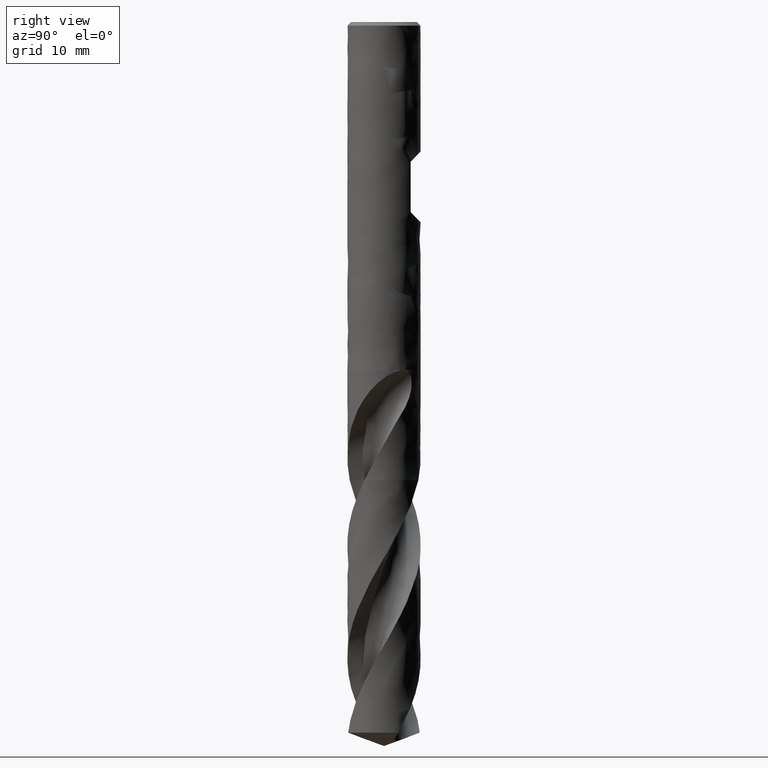
[diagram: clean part render]
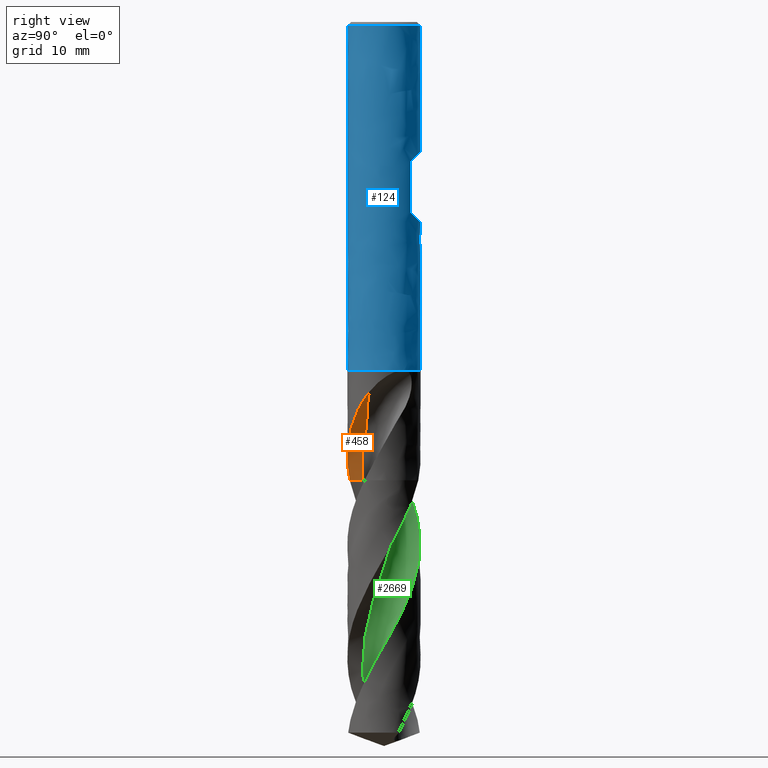
[diagram: same view with three faces highlighted in distinct colors, each labeled with its STEP entity id]
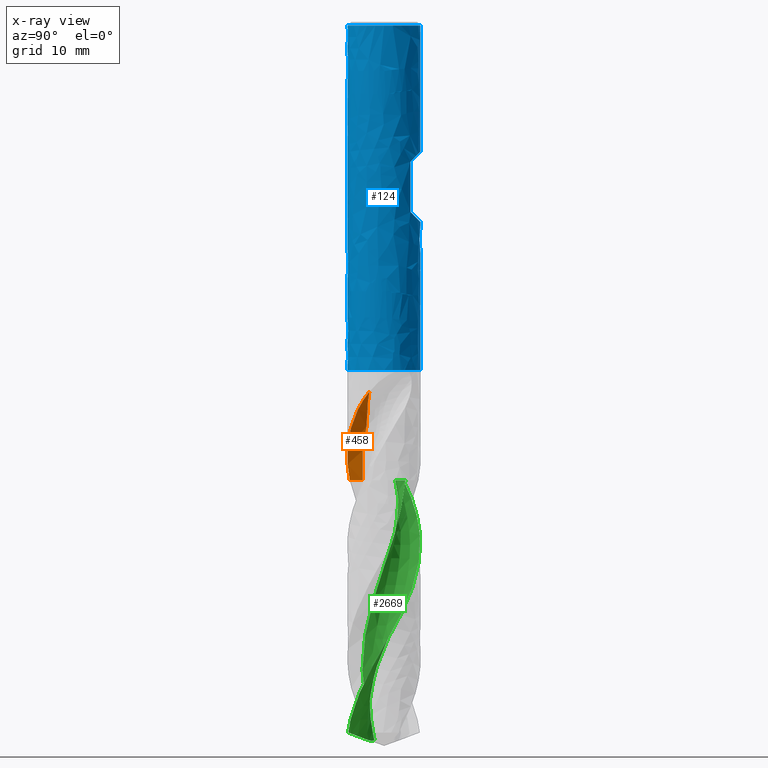
[diagram: x-ray of the same camera — body ghosted, the three highlighted faces saturated]
A machine part, right view with three faces highlighted in distinct colors.
The next image is the same camera in x-ray (body ghosted, the three faces saturated) — at least one of them is partly hidden behind the body in this view.
Their STEP definitions:

[orange] entity #458 — the highlighted face is a freeform B-spline surface patch.
#458 = ADVANCED_FACE('', (#459), #611, .T.);
#459 = FACE_OUTER_BOUND('', #460, .T.);
#460 = EDGE_LOOP('', (#461, #471, #493));
#461 = ORIENTED_EDGE('', *, *, #462, .T.);
#462 = EDGE_CURVE('', #463, #465, #467, .T.);
#463 = VERTEX_POINT('', #464);
#464 = CARTESIAN_POINT('', (-1.40999590410393, -3.74324879622102, -50.));
#465 = VERTEX_POINT('', #466);
#466 = CARTESIAN_POINT('', (-0.522554100661292, -2.33690142016581, -50.));
#467 = LINE('', #468, #469);
#468 = CARTESIAN_POINT('', (-1.40999590410393, -3.74324879622102, -50.));
#469 = VECTOR('', #470, 1.66293893352549);
#470 = DIRECTION('', (0.887441803442638, 1.40634737605521, 0.));
#471 = ORIENTED_EDGE('', *, *, #472, .T.);
#472 = EDGE_CURVE('', #465, #473, #475, .T.);
#473 = VERTEX_POINT('', #474);
#474 = CARTESIAN_POINT('', (3.66529558338989, -1.60175163067891, -40.3472388460467));
#475 = (
   BOUNDED_CURVE ()
   B_SPLINE_CURVE (3, (#476, #477, #478, #479, #480, #481, #482, #483, #484, #485, #486, #487, #488, #489, #490, #491, #492), .UNSPECIFIED., .F., .U.)
   B_SPLINE_CURVE_WITH_KNOTS ((4, 1, 1, 1, 1, 1, 1, 1, 1, 1, 1, 1, 1, 1, 4), (29.05, 29.3357142857143, 30.0691071428571, 30.8025, 31.5358928571429, 32.2692857142857, 33.0026785714286, 33.7360714285714, 34.4694642857143, 35.2028571428571, 35.93625, 36.6696428571429, 37.4030357142857, 38.1364285714286, 38.7027611539533), .UNSPECIFIED.)
   CURVE ()
   GEOMETRIC_REPRESENTATION_ITEM ()
   RATIONAL_B_SPLINE_CURVE ((1., 1., 1., 1., 1., 1., 1., 1., 1., 1., 1., 1., 1., 1., 1., 1., 1.))
   REPRESENTATION_ITEM ('')
);
#476 = CARTESIAN_POINT('', (-0.522554100661292, -2.33690142016581, -50.));
#477 = CARTESIAN_POINT('', (-0.490939759230996, -2.34479829475058, -49.9047619047619));
#478 = CARTESIAN_POINT('', (-0.377548080624003, -2.37071596638895, -49.5650595238095));
#479 = CARTESIAN_POINT('', (-0.179242671855439, -2.4013690527382, -48.9808928571429));
#480 = CARTESIAN_POINT('', (0.0729055115007645, -2.41319362456341, -48.2475));
#481 = CARTESIAN_POINT('', (0.32628660765803, -2.40167450081462, -47.5141071428571));
#482 = CARTESIAN_POINT('', (0.575009013858541, -2.34921152854461, -46.7807142857143));
#483 = CARTESIAN_POINT('', (0.810968384885545, -2.25660969691627, -46.0473214285714));
#484 = CARTESIAN_POINT('', (1.0264839372963, -2.12386588205989, -45.3139285714286));
#485 = CARTESIAN_POINT('', (1.21736329771102, -1.96747170874383, -44.5805357142857));
#486 = CARTESIAN_POINT('', (1.45519497220082, -1.88610057300262, -43.8471428571429));
#487 = CARTESIAN_POINT('', (1.75156624955443, -1.83981040502243, -43.11375));
#488 = CARTESIAN_POINT('', (2.12593397115049, -1.8132075114398, -42.3803571428571));
#489 = CARTESIAN_POINT('', (2.5897990107985, -1.77953720371552, -41.6469642857143));
#490 = CARTESIAN_POINT('', (3.10758505556738, -1.71655765165794, -40.9692581867775));
#491 = CARTESIAN_POINT('', (3.48957577428962, -1.64266297441078, -40.536016373555));
#492 = CARTESIAN_POINT('', (3.66529558338989, -1.60175163067891, -40.3472388460467));
#493 = ORIENTED_EDGE('', *, *, #494, .T.);
#494 = EDGE_CURVE('', #473, #463, #495, .T.);
#495 = B_SPLINE_CURVE_WITH_KNOTS('', 3, (#496, #497, #498, #499, #500, #501, #502, #503, #504, #505, #506, #507, #508, #509, #510, #511, #512, #513, #514, #515, #516, #517, #518, #519, #520, #521, #522, #523, #524, #525, #526, #527, #528, #529, #530, #531, #532, #533, #534, #535, #536, #537, #538, #539, #540, #541, #542, #543, #544, #545, #546, #547, #548, #549, #550, #551, #552, #553, #554, #555, #556, #557, #558, #559, #560, #561, #562, #563, #564, #565, #566, #567, #568, #569, #570, #571, #572, #573, #574, #575, #576, #577, #578, #579, #580, #581, #582, #583, #584, #585, #586, #587, #588, #589, #590, #591, #592, #593, #594, #595, #596, #597, #598, #599, #600, #601, #602, #603, #604, #605, #606, #607, #608, #609, #610), .UNSPECIFIED., .F., .U., (4, 3, 3, 3, 3, 3, 3, 3, 3, 3, 3, 3, 3, 3, 3, 3, 3, 3, 3, 3, 3, 3, 3, 3, 3, 3, 3, 3, 3, 3, 3, 3, 3, 3, 3, 3, 3, 3, 4), (0., 0.294973641300436, 0.589960935948421, 0.884963992566065, 1.1799933516495, 1.47505419212451, 1.7701476994056, 2.06527906509057, 2.36045218931267, 2.65566669271506, 2.95093024637943, 3.24624822969465, 3.54161640103501, 3.98464955181337, 4.28008282720033, 4.47707124686465, 4.77259566990016, 5.068183090888, 5.19954569370167, 5.39657192236371, 5.59354959186451, 5.79051002932344, 5.98748513597202, 6.07505552434508, 6.51812243960967, 6.81350330762995, 7.10885648159565, 7.551687946119, 7.99448966102571, 8.43722916634434, 8.52478279284723, 8.58317261678896, 9.02710955932289, 9.32294593496894, 9.52010234788831, 10.1862307135982, 10.8522274178395, 11.2959539310954, 11.4268068626108), .UNSPECIFIED.);
#496 = CARTESIAN_POINT('', (3.66529558338989, -1.60175163067891, -40.3472388460467));
#497 = CARTESIAN_POINT('', (3.63988548252686, -1.65989768071744, -40.4223459708851));
#498 = CARTESIAN_POINT('', (3.61322501180358, -1.71713283388309, -40.4977511164364));
#499 = CARTESIAN_POINT('', (3.58539568520209, -1.77339724273335, -40.5734317707682));
#500 = CARTESIAN_POINT('', (3.55756507047374, -1.82966425587573, -40.6491159281055));
#501 = CARTESIAN_POINT('', (3.52855855265209, -1.88497437662369, -40.7250942168251));
#502 = CARTESIAN_POINT('', (3.49846134099365, -1.93927002905035, -40.8013487349465));
#503 = CARTESIAN_POINT('', (3.46836252115972, -1.99356858264069, -40.8776073275531));
#504 = CARTESIAN_POINT('', (3.43716672346742, -2.04686380959717, -40.9541617987226));
#505 = CARTESIAN_POINT('', (3.40496006142179, -2.09910623364385, -41.030993464547));
#506 = CARTESIAN_POINT('', (3.37275052783092, -2.15135331562387, -41.107831980681));
#507 = CARTESIAN_POINT('', (3.33952175677055, -2.20256086359218, -41.1849638239029));
#508 = CARTESIAN_POINT('', (3.30535840616677, -2.25268857296846, -41.2623682644696));
#509 = CARTESIAN_POINT('', (3.2711914101298, -2.30282163127019, -41.3397809645517));
#510 = CARTESIAN_POINT('', (3.23608207254539, -2.35188564768242, -41.4174831667492));
#511 = CARTESIAN_POINT('', (3.20011804697459, -2.39984259596906, -41.4954585042774));
#512 = CARTESIAN_POINT('', (3.1641500397509, -2.44780485367029, -41.5734424746193));
#513 = CARTESIAN_POINT('', (3.12732024172726, -2.4946690100993, -41.6517168304035));
#514 = CARTESIAN_POINT('', (3.08971841374572, -2.5404015674221, -41.7302675214945));
#515 = CARTESIAN_POINT('', (3.05211176171636, -2.58613999190762, -41.8088282900821));
#516 = CARTESIAN_POINT('', (3.01372418191872, -2.63075729750919, -41.8876798155401));
#517 = CARTESIAN_POINT('', (2.97464126521183, -2.67423060772607, -41.9668041166922));
#518 = CARTESIAN_POINT('', (2.93555281861006, -2.71771006904057, -42.045939613249));
#519 = CARTESIAN_POINT('', (2.89576118919322, -2.76005366263351, -42.1253631535206));
#520 = CARTESIAN_POINT('', (2.85535453072002, -2.80124088644598, -42.2050607794255));
#521 = CARTESIAN_POINT('', (2.81494220779344, -2.84243388413628, -42.2847695778328));
#522 = CARTESIAN_POINT('', (2.77390780382041, -2.88247717437984, -42.3647679194026));
#523 = CARTESIAN_POINT('', (2.73234156439187, -2.92135406541155, -42.4450446067411));
#524 = CARTESIAN_POINT('', (2.69076841868024, -2.96023741588773, -42.5253346321524));
#525 = CARTESIAN_POINT('', (2.64865421431755, -2.99796268866035, -42.6059155221272));
#526 = CARTESIAN_POINT('', (2.60607998416151, -3.03452584700688, -42.6867690931523));
#527 = CARTESIAN_POINT('', (2.56349790576123, -3.07109574550105, -42.7676375689349));
#528 = CARTESIAN_POINT('', (2.52044826653114, -3.10650935986105, -42.8487923957041));
#529 = CARTESIAN_POINT('', (2.47701458881643, -3.14076403551599, -42.93021987318));
#530 = CARTESIAN_POINT('', (2.4335735297344, -3.17502453260619, -43.0116611889067));
#531 = CARTESIAN_POINT('', (2.38974134035934, -3.20813109369697, -43.0933885276679));
#532 = CARTESIAN_POINT('', (2.34560608636422, -3.24008211124522, -43.1753934483419));
#533 = CARTESIAN_POINT('', (2.27940606031156, -3.28800657077903, -43.2983955247696));
#534 = CARTESIAN_POINT('', (2.21250558076663, -3.33334379186948, -43.4220575303767));
#535 = CARTESIAN_POINT('', (2.14518511791262, -3.37611919367285, -43.5463432027536));
#536 = CARTESIAN_POINT('', (2.10029298104524, -3.40464364390543, -43.6292221548354));
#537 = CARTESIAN_POINT('', (2.05520559425868, -3.43203489677051, -43.7123934554312));
#538 = CARTESIAN_POINT('', (2.01000246610369, -3.45830740193196, -43.7958458465852));
#539 = CARTESIAN_POINT('', (1.97986201300994, -3.47582533137168, -43.8514900682088));
#540 = CARTESIAN_POINT('', (1.94966868329302, -3.49284685431198, -43.9072642139074));
#541 = CARTESIAN_POINT('', (1.91944007400042, -3.50938025900888, -43.9631612788931));
#542 = CARTESIAN_POINT('', (1.87409074668675, -3.53418387382132, -44.0470187356279));
#543 = CARTESIAN_POINT('', (1.82865437576402, -3.55789285080718, -44.1311601799919));
#544 = CARTESIAN_POINT('', (1.78320170916104, -3.58052952291216, -44.2155727976524));
#545 = CARTESIAN_POINT('', (1.73773935325761, -3.60317102055398, -44.3000034098394));
#546 = CARTESIAN_POINT('', (1.69225414168109, -3.62474252475945, -44.3847158015919));
#547 = CARTESIAN_POINT('', (1.64684865439148, -3.64525575365155, -44.4697189818762));
#548 = CARTESIAN_POINT('', (1.62666991007126, -3.65437207913784, -44.5074954169229));
#549 = CARTESIAN_POINT('', (1.60650659554658, -3.66327963782371, -44.5453311076352));
#550 = CARTESIAN_POINT('', (1.58637033505744, -3.67197891606825, -44.5832283598983));
#551 = CARTESIAN_POINT('', (1.55616865376798, -3.68502666289947, -44.6400691390098));
#552 = CARTESIAN_POINT('', (1.52602913748641, -3.6976054919698, -44.6970525798161));
#553 = CARTESIAN_POINT('', (1.49595823966794, -3.7097316540647, -44.7541661221448));
#554 = CARTESIAN_POINT('', (1.46589475313469, -3.72185482754095, -44.8112655882475));
#555 = CARTESIAN_POINT('', (1.43589854759943, -3.73352638660609, -44.8684980384923));
#556 = CARTESIAN_POINT('', (1.40594155229814, -3.7447734713226, -44.9258322787401));
#557 = CARTESIAN_POINT('', (1.37598717770101, -3.75601957211927, -44.9831615032617));
#558 = CARTESIAN_POINT('', (1.34607074507112, -3.76684204802981, -45.0405949844161));
#559 = CARTESIAN_POINT('', (1.31612726672898, -3.77727534312399, -45.0980833639649));
#560 = CARTESIAN_POINT('', (1.28618155826099, -3.78770941526755, -45.1555760251244));
#561 = CARTESIAN_POINT('', (1.25620755825593, -3.79775496461825, -45.2131256353512));
#562 = CARTESIAN_POINT('', (1.22610400939159, -3.80744914058663, -45.2706653668628));
#563 = CARTESIAN_POINT('', (1.21272069659481, -3.81175893774298, -45.2962461456784));
#564 = CARTESIAN_POINT('', (1.1993097734567, -3.81599976844788, -45.321824209831));
#565 = CARTESIAN_POINT('', (1.18586550781427, -3.82017316327105, -45.3473956422262));
#566 = CARTESIAN_POINT('', (1.11784354951473, -3.84128867052003, -45.4767756287803));
#567 = CARTESIAN_POINT('', (1.04901297583401, -3.86066115630632, -45.6060293994899));
#568 = CARTESIAN_POINT('', (0.979550942957006, -3.8782057642874, -45.7351775512281));
#569 = CARTESIAN_POINT('', (0.933242462547429, -3.88990228541318, -45.8212771715097));
#570 = CARTESIAN_POINT('', (0.886647092292493, -3.90078880836032, -45.9073368800789));
#571 = CARTESIAN_POINT('', (0.839794426414853, -3.9108496930159, -45.9933487099457));
#572 = CARTESIAN_POINT('', (0.792946153307451, -3.92090963439207, -46.0793524755925));
#573 = CARTESIAN_POINT('', (0.745834097666962, -3.93014553415784, -46.1653133718542));
#574 = CARTESIAN_POINT('', (0.698485294488092, -3.93854266111005, -46.2512214035832));
#575 = CARTESIAN_POINT('', (0.627493879113756, -3.95113271381241, -46.3800257735991));
#576 = CARTESIAN_POINT('', (0.555959630146057, -3.96183856430625, -46.5087304050151));
#577 = CARTESIAN_POINT('', (0.483994570718908, -3.97061069050022, -46.6373108710384));
#578 = CARTESIAN_POINT('', (0.412034345936769, -3.97938222737881, -46.7658826989684));
#579 = CARTESIAN_POINT('', (0.339628915235637, -3.9862216556425, -46.8943527492614));
#580 = CARTESIAN_POINT('', (0.266915505479054, -3.99108457852434, -47.0227078846077));
#581 = CARTESIAN_POINT('', (0.194212311291011, -3.99594681821003, -47.1510449872323));
#582 = CARTESIAN_POINT('', (0.121189499582516, -3.99883375413241, -47.2792917070159));
#583 = CARTESIAN_POINT('', (0.0479944411221346, -3.99971205633873, -47.4074381846585));
#584 = CARTESIAN_POINT('', (0.0335198059623794, -3.99988574434805, -47.4327796974587));
#585 = CARTESIAN_POINT('', (0.0190381243058184, -3.9999809299679, -47.4581178465972));
#586 = CARTESIAN_POINT('', (0.00455054299049527, -3.99999741156897, -47.4834525504148));
#587 = CARTESIAN_POINT('', (-0.00511127635533454, -4.00000840320716, -47.5003483542165));
#588 = CARTESIAN_POINT('', (-0.0147757533546945, -3.99998439095963, -47.5172426976199));
#589 = CARTESIAN_POINT('', (-0.0244425686748547, -3.99992531940742, -47.5341355438014));
#590 = CARTESIAN_POINT('', (-0.097939218391674, -3.99947619929526, -47.6625715961517));
#591 = CARTESIAN_POINT('', (-0.171589390872683, -3.99699847593036, -47.790928936205));
#592 = CARTESIAN_POINT('', (-0.245205244701664, -3.9924772244774, -47.9192178411116));
#593 = CARTESIAN_POINT('', (-0.294262318579202, -3.98946429512849, -48.0047086417793));
#594 = CARTESIAN_POINT('', (-0.343306788169703, -3.98554382863621, -48.0901794978618));
#595 = CARTESIAN_POINT('', (-0.392254688666916, -3.9807205703514, -48.1756499047633));
#596 = CARTESIAN_POINT('', (-0.424875398209108, -3.97750617083769, -48.2326105770224));
#597 = CARTESIAN_POINT('', (-0.457451280783398, -3.97389124044279, -48.2895757417427));
#598 = CARTESIAN_POINT('', (-0.489965304739077, -3.96987833568636, -48.3465467526263));
#599 = CARTESIAN_POINT('', (-0.599819776726795, -3.95632001593622, -48.5390335493314));
#600 = CARTESIAN_POINT('', (-0.709011612720874, -3.93821377731197, -48.7316326859589));
#601 = CARTESIAN_POINT('', (-0.817247012347604, -3.91562349068569, -48.9241885925775));
#602 = CARTESIAN_POINT('', (-0.92546101905308, -3.89303766907015, -49.1167064401751));
#603 = CARTESIAN_POINT('', (-1.03279345822637, -3.86594956544709, -49.3092461643657));
#604 = CARTESIAN_POINT('', (-1.13879917493291, -3.83446690416964, -49.501743287184));
#605 = CARTESIAN_POINT('', (-1.20942647197482, -3.8134912875822, -49.6299962899031));
#606 = CARTESIAN_POINT('', (-1.27947805128408, -3.7905622364272, -49.7582629850321));
#607 = CARTESIAN_POINT('', (-1.3488261135704, -3.76572278790547, -49.8865239391039));
#608 = CARTESIAN_POINT('', (-1.36927654187248, -3.75839774746008, -49.9243475113671));
#609 = CARTESIAN_POINT('', (-1.38966882441347, -3.75090554058032, -49.9621756301957));
#610 = CARTESIAN_POINT('', (-1.40999590410393, -3.74324879622102, -50.));
#611 = B_SPLINE_SURFACE_WITH_KNOTS('', 3, 1, ((#612, #613), (#614, #615), (#616, #617), (#618, #619), (#620, #621), (#622, #623), (#624, #625), (#626, #627), (#628, #629), (#630, #631), (#632, #633), (#634, #635), (#636, #637), (#638, #639), (#640, #641), (#642, #643), (#644, #645)), .UNSPECIFIED., .F., .F., .U., (4, 1, 1, 1, 1, 1, 1, 1, 1, 1, 1, 1, 1, 1, 4), (2, 2), (29.0499999999986, 29.3357142857143, 30.0691071428571, 30.8025, 31.5358928571429, 32.2692857142857, 33.0026785714286, 33.7360714285714, 34.4694642857143, 35.2028571428571, 35.93625, 36.6696428571429, 37.4030357142857, 38.1364285714286, 38.7027611539535), (0., 0.208735649969521), .UNSPECIFIED.);
#612 = CARTESIAN_POINT('', (-0.522554100661769, -2.33690142016569, -50.0000000000014));
#613 = CARTESIAN_POINT('', (-1.47282387555367, -3.84281358170562, -50.0000000000014));
#614 = CARTESIAN_POINT('', (-0.490939759231316, -2.34479829475051, -49.9047619047629));
#615 = CARTESIAN_POINT('', (-1.42104400978943, -3.86414558662429, -49.9047619047629));
#616 = CARTESIAN_POINT('', (-0.377548080624166, -2.37071596638893, -49.56505952381));
#617 = CARTESIAN_POINT('', (-1.23472267488163, -3.93656617444317, -49.56505952381));
#618 = CARTESIAN_POINT('', (-0.179242671855439, -2.4013690527382, -48.9808928571429));
#619 = CARTESIAN_POINT('', (-0.905205146217479, -4.03827020839851, -48.9808928571429));
#620 = CARTESIAN_POINT('', (0.0729055115007645, -2.41319362456341, -48.2475));
#621 = CARTESIAN_POINT('', (-0.479429987339761, -4.12142259682361, -48.2475));
#622 = CARTESIAN_POINT('', (0.326286607658031, -2.40167450081462, -47.5141071428571));
#623 = CARTESIAN_POINT('', (-0.0457216526949441, -4.16519158647835, -47.5141071428571));
#624 = CARTESIAN_POINT('', (0.575009013858542, -2.34921152854461, -46.7807142857143));
#625 = CARTESIAN_POINT('', (0.390302991350443, -4.13817821341547, -46.7807142857143));
#626 = CARTESIAN_POINT('', (0.810968384885545, -2.25660969691627, -46.0473214285714));
#627 = CARTESIAN_POINT('', (0.814662712763701, -4.03972481201917, -46.0473214285714));
#628 = CARTESIAN_POINT('', (1.0264839372963, -2.12386588205989, -45.3139285714286));
#629 = CARTESIAN_POINT('', (1.2142985284117, -3.86790557555197, -45.3139285714286));
#630 = CARTESIAN_POINT('', (1.21736329771102, -1.96747170874383, -44.5805357142857));
#631 = CARTESIAN_POINT('', (1.57795852705081, -3.64971323201326, -44.5805357142857));
#632 = CARTESIAN_POINT('', (1.45519497220082, -1.88610057300262, -43.8471428571429));
#633 = CARTESIAN_POINT('', (2.00269364566086, -3.57082371901645, -43.8471428571429));
#634 = CARTESIAN_POINT('', (1.75156624955444, -1.83981040502243, -43.11375));
#635 = CARTESIAN_POINT('', (2.51819301861208, -3.56622014266087, -43.11375));
#636 = CARTESIAN_POINT('', (2.12593397115049, -1.8132075114398, -42.3803571428571));
#637 = CARTESIAN_POINT('', (3.16138846109984, -3.61459331786496, -42.3803571428571));
#638 = CARTESIAN_POINT('', (2.5897990107985, -1.77953720371552, -41.6469642857143));
#639 = CARTESIAN_POINT('', (3.95852481545182, -3.67332746799538, -41.6469642857143));
#640 = CARTESIAN_POINT('', (3.10758505556742, -1.71655765165794, -40.9692581867774));
#641 = CARTESIAN_POINT('', (4.85467240756959, -3.6957089735381, -40.9692581867774));
#642 = CARTESIAN_POINT('', (3.48957577428973, -1.64266297441076, -40.5360163735548));
#643 = CARTESIAN_POINT('', (5.52265414804993, -3.66557718637127, -40.5360163735548));
#644 = CARTESIAN_POINT('', (3.66529558339006, -1.60175163067887, -40.3472388460465));
#645 = CARTESIAN_POINT('', (5.83166290109599, -3.63995174594154, -40.3472388460465));

[blue] entity #124 — the highlighted face is a freeform B-spline surface patch.
#73 = VERTEX_POINT('', #74);
#74 = CARTESIAN_POINT('', (-4., 2.69422295812417E-16, -0.399999999999999));
#90 = EDGE_CURVE('', #73, #73, #91, .T.);
#91 = CIRCLE('', #92, 4.);
#92 = AXIS2_PLACEMENT_3D('', #93, #94, #95);
#93 = CARTESIAN_POINT('', (1.49975978266185E-33, 2.44929359829467E-17, -0.399999999999999));
#94 = DIRECTION('', (3.74939945665464E-33, 6.12323399573677E-17, -1.));
#95 = DIRECTION('', (-1., 6.12323399573677E-17, 0.));
#124 = ADVANCED_FACE('', (#125, #226), #397, .T.);
#125 = FACE_OUTER_BOUND('', #126, .T.);
#126 = EDGE_LOOP('', (#127, #141, #150, #162, #170, #182, #191, #197, #198, #199, #208, #220));
#127 = ORIENTED_EDGE('', *, *, #128, .T.);
#128 = EDGE_CURVE('', #129, #131, #133, .T.);
#129 = VERTEX_POINT('', #130);
#130 = CARTESIAN_POINT('', (-3.42821130879618, -2.06091417148846, -37.98));
#131 = VERTEX_POINT('', #132);
#132 = CARTESIAN_POINT('', (-3.2884046561172, -2.27736576281166, -38.));
#133 = B_SPLINE_CURVE_WITH_KNOTS('', 3, (#134, #135, #136, #137, #138, #139, #140), .UNSPECIFIED., .F., .U., (4, 3, 4), (0., 0.19754404268526, 0.258629740345547), .UNSPECIFIED.);
#134 = CARTESIAN_POINT('', (-3.42821130879348, -2.06091417149295, -37.98));
#135 = CARTESIAN_POINT('', (-3.39428454680656, -2.11734937424089, -37.9800607429626));
#136 = CARTESIAN_POINT('', (-3.35887489468949, -2.17307019764808, -37.9836705479994));
#137 = CARTESIAN_POINT('', (-3.32246800887656, -2.22737655774497, -37.991501186304));
#138 = CARTESIAN_POINT('', (-3.31121006361387, -2.24416948072466, -37.9939226210254));
#139 = CARTESIAN_POINT('', (-3.29984883037727, -2.2608409355148, -37.9967491696192));
#140 = CARTESIAN_POINT('', (-3.28840465611721, -2.27736576281163, -38.));
#141 = ORIENTED_EDGE('', *, *, #142, .F.);
#142 = EDGE_CURVE('', #143, #131, #145, .T.);
#143 = VERTEX_POINT('', #144);
#144 = CARTESIAN_POINT('', (3.5657683030846, 1.81253866406131, -38.));
#145 = CIRCLE('', #146, 4.);
#146 = AXIS2_PLACEMENT_3D('', #147, #148, #149);
#147 = CARTESIAN_POINT('', (1.42477179352876E-31, 2.32682891837997E-15, -38.));
#148 = DIRECTION('', (3.74939945665464E-33, 6.12323399573677E-17, -1.));
#149 = DIRECTION('', (-1., 6.12323399573677E-17, 0.));
#150 = ORIENTED_EDGE('', *, *, #151, .F.);
#151 = EDGE_CURVE('', #152, #143, #154, .T.);
#152 = VERTEX_POINT('', #153);
#153 = CARTESIAN_POINT('', (3.42995656495949, 2.0580082513176, -37.98));
#154 = B_SPLINE_CURVE_WITH_KNOTS('', 3, (#155, #156, #157, #158, #159, #160, #161), .UNSPECIFIED., .F., .U., (4, 3, 4), (0., 0.197079238013963, 0.281412577999545), .UNSPECIFIED.);
#155 = CARTESIAN_POINT('', (3.42995656496545, 2.05800825130766, -37.98));
#156 = CARTESIAN_POINT('', (3.46375577544778, 2.00167717303776, -37.9800605361757));
#157 = CARTESIAN_POINT('', (3.49620154753828, 1.94444035942001, -37.9836350951882));
#158 = CARTESIAN_POINT('', (3.52703774565383, 1.88679748270267, -37.9901164779446));
#159 = CARTESIAN_POINT('', (3.54023304519806, 1.86213117909333, -37.9928899646958));
#160 = CARTESIAN_POINT('', (3.55314719475518, 1.83736789883747, -37.9961984979892));
#161 = CARTESIAN_POINT('', (3.56576830308459, 1.81253866406134, -38.));
#162 = ORIENTED_EDGE('', *, *, #163, .F.);
#163 = EDGE_CURVE('', #164, #152, #166, .T.);
#164 = VERTEX_POINT('', #165);
#165 = CARTESIAN_POINT('', (3.42821130879618, 2.06091417148847, -37.98));
#166 = LINE('', #167, #168);
#167 = CARTESIAN_POINT('', (3.42821130879618, 2.06091417148847, -37.98));
#168 = VECTOR('', #169, 0.0033897331923083);
#169 = DIRECTION('', (0.00174525616330978, -0.00290592017086944, 0.));
#170 = ORIENTED_EDGE('', *, *, #171, .T.);
#171 = EDGE_CURVE('', #164, #172, #174, .T.);
#172 = VERTEX_POINT('', #173);
#173 = CARTESIAN_POINT('', (3.2884046561172, 2.27736576281165, -38.));
#174 = B_SPLINE_CURVE_WITH_KNOTS('', 3, (#175, #176, #177, #178, #179, #180, #181), .UNSPECIFIED., .F., .U., (4, 3, 4), (0., 0.197544042685257, 0.258629740344045), .UNSPECIFIED.);
#175 = CARTESIAN_POINT('', (3.4282113087927, 2.06091417149426, -37.98));
#176 = CARTESIAN_POINT('', (3.39428454680576, 2.11734937424219, -37.9800607429627));
#177 = CARTESIAN_POINT('', (3.35887489468866, 2.17307019764935, -37.9836705479995));
#178 = CARTESIAN_POINT('', (3.32246800887572, 2.22737655774623, -37.9915011863042));
#179 = CARTESIAN_POINT('', (3.3112100636133, 2.24416948072549, -37.9939226210255));
#180 = CARTESIAN_POINT('', (3.29984883037698, 2.26084093551522, -37.9967491696193));
#181 = CARTESIAN_POINT('', (3.28840465611721, 2.27736576281165, -38.));
#182 = ORIENTED_EDGE('', *, *, #183, .F.);
#183 = EDGE_CURVE('', #184, #172, #186, .T.);
#184 = VERTEX_POINT('', #185);
#185 = CARTESIAN_POINT('', (-4., 2.57175827820944E-15, -38.));
#186 = CIRCLE('', #187, 4.);
#187 = AXIS2_PLACEMENT_3D('', #188, #189, #190);
#188 = CARTESIAN_POINT('', (1.42477179352876E-31, 2.32682891837997E-15, -38.));
#189 = DIRECTION('', (3.74939945665464E-33, 6.12323399573677E-17, -1.));
#190 = DIRECTION('', (-1., 6.12323399573677E-17, 0.));
#191 = ORIENTED_EDGE('', *, *, #192, .T.);
#192 = EDGE_CURVE('', #184, #73, #193, .T.);
#193 = LINE('', #194, #195);
#194 = CARTESIAN_POINT('', (-4., 2.57175827820944E-15, -38.));
#195 = VECTOR('', #196, 37.6);
#196 = DIRECTION('', (0., -2.30233598239702E-15, 37.6));
#197 = ORIENTED_EDGE('', *, *, #90, .T.);
#198 = ORIENTED_EDGE('', *, *, #192, .F.);
#199 = ORIENTED_EDGE('', *, *, #200, .F.);
#200 = EDGE_CURVE('', #201, #184, #203, .T.);
#201 = VERTEX_POINT('', #202);
#202 = CARTESIAN_POINT('', (-3.5657683030846, -1.81253866406131, -38.));
#203 = CIRCLE('', #204, 4.);
#204 = AXIS2_PLACEMENT_3D('', #205, #206, #207);
#205 = CARTESIAN_POINT('', (1.42477179352876E-31, 2.32682891837997E-15, -38.));
#206 = DIRECTION('', (3.74939945665464E-33, 6.12323399573677E-17, -1.));
#207 = DIRECTION('', (-1., 6.12323399573677E-17, 0.));
#208 = ORIENTED_EDGE('', *, *, #209, .F.);
#209 = EDGE_CURVE('', #210, #201, #212, .T.);
#210 = VERTEX_POINT('', #211);
#211 = CARTESIAN_POINT('', (-3.42995656495949, -2.05800825131759, -37.98));
#212 = B_SPLINE_CURVE_WITH_KNOTS('', 3, (#213, #214, #215, #216, #217, #218, #219), .UNSPECIFIED., .F., .U., (4, 3, 4), (0., 0.197079238013968, 0.281412578001318), .UNSPECIFIED.);
#213 = CARTESIAN_POINT('', (-3.42995656496454, -2.05800825130917, -37.98));
#214 = CARTESIAN_POINT('', (-3.4637557754469, -2.00167717303928, -37.9800605361757));
#215 = CARTESIAN_POINT('', (-3.49620154753742, -1.94444035942155, -37.9836350951881));
#216 = CARTESIAN_POINT('', (-3.527037745653, -1.88679748270421, -37.9901164779444));
#217 = CARTESIAN_POINT('', (-3.54023304519752, -1.86213117909436, -37.9928899646956));
#218 = CARTESIAN_POINT('', (-3.55314719475492, -1.83736789883798, -37.9961984979891));
#219 = CARTESIAN_POINT('', (-3.56576830308459, -1.81253866406133, -38.));
#220 = ORIENTED_EDGE('', *, *, #221, .F.);
#221 = EDGE_CURVE('', #129, #210, #222, .T.);
#222 = LINE('', #223, #224);
#223 = CARTESIAN_POINT('', (-3.42821130879618, -2.06091417148846, -37.98));
#224 = VECTOR('', #225, 0.00338973319230663);
#225 = DIRECTION('', (-0.00174525616330801, 0.00290592017086855, 0.));
#226 = FACE_BOUND('', #227, .T.);
#227 = EDGE_LOOP('', (#228, #305, #313, #391));
#228 = ORIENTED_EDGE('', *, *, #229, .F.);
#229 = EDGE_CURVE('', #230, #232, #234, .T.);
#230 = VERTEX_POINT('', #231);
#231 = CARTESIAN_POINT('', (-2.75499546279118, 2.9, -15.25));
#232 = VERTEX_POINT('', #233);
#233 = CARTESIAN_POINT('', (2.75499546279118, 2.9, -15.25));
#234 = B_SPLINE_CURVE_WITH_KNOTS('', 3, (#235, #236, #237, #238, #239, #240, #241, #242, #243, #244, #245, #246, #247, #248, #249, #250, #251, #252, #253, #254, #255, #256, #257, #258, #259, #260, #261, #262, #263, #264, #265, #266, #267, #268, #269, #270, #271, #272, #273, #274, #275, #276, #277, #278, #279, #280, #281, #282, #283, #284, #285, #286, #287, #288, #289, #290, #291, #292, #293, #294, #295, #296, #297, #298, #299, #300, #301, #302, #303, #304), .UNSPECIFIED., .F., .U., (4, 3, 3, 3, 3, 3, 3, 3, 3, 3, 3, 3, 3, 3, 3, 3, 3, 3, 3, 3, 3, 3, 3, 4), (0., 0.0275651498824265, 0.323329754227847, 0.61922380065768, 0.915270205533213, 1.21149541087731, 1.50792863848376, 1.80460015310044, 2.10153821450145, 2.39876467460959, 2.69628978664823, 2.99410761532925, 3.29009749181974, 3.58608736831022, 3.88390519699124, 4.18143030902988, 4.47865676913802, 4.77559483053904, 5.07226634515571, 5.36869957276216, 5.66492477810626, 5.96097118298179, 6.25686522941162, 6.58019498363947), .UNSPECIFIED.);
#235 = CARTESIAN_POINT('', (-2.75499546279118, 2.9, -15.25));
#236 = CARTESIAN_POINT('', (-2.74954033135109, 2.90518236633323, -15.2447263857062));
#237 = CARTESIAN_POINT('', (-2.74406521982218, 2.91035442984719, -15.2394632556375));
#238 = CARTESIAN_POINT('', (-2.73857013102126, 2.91551601564428, -15.2342107877709));
#239 = CARTESIAN_POINT('', (-2.67960971281274, 2.97089806100158, -15.1778536089774));
#240 = CARTESIAN_POINT('', (-2.61831798837026, 3.02510234122731, -15.122694932689));
#241 = CARTESIAN_POINT('', (-2.55471049779373, 3.07789770337849, -15.0689699818493));
#242 = CARTESIAN_POINT('', (-2.49107516924727, 3.13071617154583, -15.0152215181567));
#243 = CARTESIAN_POINT('', (-2.42505948854959, 3.18217572696543, -14.9628558941227));
#244 = CARTESIAN_POINT('', (-2.35670846888833, 3.23201565476873, -14.9121384151248));
#245 = CARTESIAN_POINT('', (-2.28832225468618, 3.28188124558901, -14.8613948212512));
#246 = CARTESIAN_POINT('', (-2.21752118151808, 3.33018085032992, -14.8122447863892));
#247 = CARTESIAN_POINT('', (-2.14439231660005, 3.37662280874054, -14.7649851061665));
#248 = CARTESIAN_POINT('', (-2.07121928470314, 3.42309281628059, -14.7176968829422));
#249 = CARTESIAN_POINT('', (-1.99562068806062, 3.46776202565152, -14.6722411652482));
#250 = CARTESIAN_POINT('', (-1.91774147403305, 3.51030876687135, -14.628945286836));
#251 = CARTESIAN_POINT('', (-1.83980756982381, 3.55288538626901, -14.5856190041692));
#252 = CARTESIAN_POINT('', (-1.75947339354897, 3.59339861346788, -14.5443924446584));
#253 = CARTESIAN_POINT('', (-1.6769604661359, 3.63150156202879, -14.5056186025088));
#254 = CARTESIAN_POINT('', (-1.59438121093989, 3.66963513953696, -14.466813592116));
#255 = CARTESIAN_POINT('', (-1.50947809076678, 3.70541802112886, -14.4304006672663));
#256 = CARTESIAN_POINT('', (-1.4225691970938, 3.73848858223216, -14.3967478197978));
#257 = CARTESIAN_POINT('', (-1.33558221946264, 3.77158885583323, -14.363064736672));
#258 = CARTESIAN_POINT('', (-1.2464160027603, 3.80203429897799, -14.3320832286455));
#259 = CARTESIAN_POINT('', (-1.15550315645899, 3.82946634081219, -14.3041681800707));
#260 = CARTESIAN_POINT('', (-1.06450201178593, 3.85692502579669, -14.2762260192292));
#261 = CARTESIAN_POINT('', (-0.971551110465514, 3.88142225604713, -14.251297456619));
#262 = CARTESIAN_POINT('', (-0.877208103576912, 3.90262808156492, -14.2297182517981));
#263 = CARTESIAN_POINT('', (-0.782770301221156, 3.92385521460939, -14.2081173642804));
#264 = CARTESIAN_POINT('', (-0.686708873945093, 3.94183334457734, -14.1898226863132));
#265 = CARTESIAN_POINT('', (-0.589703064917672, 3.95629249363931, -14.1751089493317));
#266 = CARTESIAN_POINT('', (-0.492601817846333, 3.97076586816795, -14.1603807364101));
#267 = CARTESIAN_POINT('', (-0.394300865590992, 3.98174917183471, -14.1492040453995));
#268 = CARTESIAN_POINT('', (-0.295578376007088, 3.98906422906892, -14.1417601890779));
#269 = CARTESIAN_POINT('', (-0.197461827282699, 3.99633438779939, -14.1343620218057));
#270 = CARTESIAN_POINT('', (-0.0986632921634955, 4., -14.1306318677307));
#271 = CARTESIAN_POINT('', (-2.93868954319698E-16, 4., -14.1306318677307));
#272 = CARTESIAN_POINT('', (0.0986632921634951, 4., -14.1306318677307));
#273 = CARTESIAN_POINT('', (0.197461827282699, 3.99633438779939, -14.1343620218057));
#274 = CARTESIAN_POINT('', (0.295578376007088, 3.98906422906892, -14.1417601890779));
#275 = CARTESIAN_POINT('', (0.394300865590992, 3.98174917183471, -14.1492040453995));
#276 = CARTESIAN_POINT('', (0.492601817846333, 3.97076586816795, -14.1603807364101));
#277 = CARTESIAN_POINT('', (0.589703064917672, 3.95629249363931, -14.1751089493317));
#278 = CARTESIAN_POINT('', (0.686708873945094, 3.94183334457734, -14.1898226863132));
#279 = CARTESIAN_POINT('', (0.782770301221157, 3.92385521460939, -14.2081173642804));
#280 = CARTESIAN_POINT('', (0.877208103576913, 3.90262808156492, -14.2297182517981));
#281 = CARTESIAN_POINT('', (0.971551110465514, 3.88142225604713, -14.251297456619));
#282 = CARTESIAN_POINT('', (1.06450201178593, 3.85692502579669, -14.2762260192292));
#283 = CARTESIAN_POINT('', (1.15550315645899, 3.82946634081219, -14.3041681800707));
#284 = CARTESIAN_POINT('', (1.2464160027603, 3.80203429897799, -14.3320832286455));
#285 = CARTESIAN_POINT('', (1.33558221946264, 3.77158885583323, -14.363064736672));
#286 = CARTESIAN_POINT('', (1.4225691970938, 3.73848858223216, -14.3967478197978));
#287 = CARTESIAN_POINT('', (1.50947809076678, 3.70541802112886, -14.4304006672663));
#288 = CARTESIAN_POINT('', (1.59438121093989, 3.66963513953696, -14.466813592116));
#289 = CARTESIAN_POINT('', (1.6769604661359, 3.63150156202879, -14.5056186025088));
#290 = CARTESIAN_POINT('', (1.75947339354896, 3.59339861346788, -14.5443924446584));
#291 = CARTESIAN_POINT('', (1.83980756982381, 3.55288538626901, -14.5856190041692));
#292 = CARTESIAN_POINT('', (1.91774147403304, 3.51030876687135, -14.628945286836));
#293 = CARTESIAN_POINT('', (1.99562068806062, 3.46776202565152, -14.6722411652482));
#294 = CARTESIAN_POINT('', (2.07121928470314, 3.42309281628059, -14.7176968829422));
#295 = CARTESIAN_POINT('', (2.14439231660005, 3.37662280874054, -14.7649851061665));
#296 = CARTESIAN_POINT('', (2.21752118151807, 3.33018085032992, -14.8122447863892));
#297 = CARTESIAN_POINT('', (2.28832225468618, 3.28188124558901, -14.8613948212512));
#298 = CARTESIAN_POINT('', (2.35670846888833, 3.23201565476873, -14.9121384151248));
#299 = CARTESIAN_POINT('', (2.42505948854959, 3.18217572696543, -14.9628558941227));
#300 = CARTESIAN_POINT('', (2.49107516924727, 3.13071617154583, -15.0152215181567));
#301 = CARTESIAN_POINT('', (2.55471049779373, 3.07789770337849, -15.0689699818493));
#302 = CARTESIAN_POINT('', (2.62424618256803, 3.02018183333213, -15.1277020779003));
#303 = CARTESIAN_POINT('', (2.69100864192036, 2.9607873797164, -15.1881423130012));
#304 = CARTESIAN_POINT('', (2.75499546279118, 2.9, -15.25));
#305 = ORIENTED_EDGE('', *, *, #306, .T.);
#306 = EDGE_CURVE('', #230, #307, #309, .T.);
#307 = VERTEX_POINT('', #308);
#308 = CARTESIAN_POINT('', (-2.75499546279118, 2.9, -20.75));
#309 = LINE('', #310, #311);
#310 = CARTESIAN_POINT('', (-2.75499546279118, 2.9, -15.25));
#311 = VECTOR('', #312, 5.5);
#312 = DIRECTION('', (-4.44089209850063E-16, 0., -5.5));
#313 = ORIENTED_EDGE('', *, *, #314, .T.);
#314 = EDGE_CURVE('', #307, #315, #317, .T.);
#315 = VERTEX_POINT('', #316);
#316 = CARTESIAN_POINT('', (2.75499546279118, 2.9, -20.75));
#317 = B_SPLINE_CURVE_WITH_KNOTS('', 3, (#318, #319, #320, #321, #322, #323, #324, #325, #326, #327, #328, #329, #330, #331, #332, #333, #334, #335, #336, #337, #338, #339, #340, #341, #342, #343, #344, #345, #346, #347, #348, #349, #350, #351, #352, #353, #354, #355, #356, #357, #358, #359, #360, #361, #362, #363, #364, #365, #366, #367, #368, #369, #370, #371, #372, #373, #374, #375, #376, #377, #378, #379, #380, #381, #382, #383, #384, #385, #386, #387, #388, #389, #390), .UNSPECIFIED., .F., .U., (4, 3, 3, 3, 3, 3, 3, 3, 3, 3, 3, 3, 3, 3, 3, 3, 3, 3, 3, 3, 3, 3, 3, 3, 4), (0., 0.443422422205695, 0.738860713972588, 1.03418677767532, 1.32938252694556, 1.62442725505234, 1.91929816542727, 2.21397155727197, 2.50842487936361, 2.80263970976592, 2.9989408510487, 3.29007345814309, 3.48724749664821, 3.68530175003223, 3.8832746562229, 4.08116298771897, 4.27896576611938, 4.57609603156437, 4.872944030885, 5.16953426674176, 5.46589607815955, 5.76205965537, 6.05805344567497, 6.35390278155855, 6.58042418211351), .UNSPECIFIED.);
#318 = CARTESIAN_POINT('', (-2.75499546279118, 2.9, -20.75));
#319 = CARTESIAN_POINT('', (-2.66724235399505, 2.98336531606178, -20.8348331619419));
#320 = CARTESIAN_POINT('', (-2.57422027727393, 3.06415258604797, -20.9170428851383));
#321 = CARTESIAN_POINT('', (-2.47599571183059, 3.14156732141782, -20.9958206921756));
#322 = CARTESIAN_POINT('', (-2.41055180017683, 3.19314630351234, -21.048307845677));
#323 = CARTESIAN_POINT('', (-2.34271971299793, 3.24329045867949, -21.0993349086891));
#324 = CARTESIAN_POINT('', (-2.27255949630797, 3.2917280166716, -21.1486253257994));
#325 = CARTESIAN_POINT('', (-2.20242593136059, 3.34014717470163, -21.1978970189722));
#326 = CARTESIAN_POINT('', (-2.12988274348655, 3.38691749931397, -21.2454908470694));
#327 = CARTESIAN_POINT('', (-2.05503738469365, 3.43173736575396, -21.2910998745108));
#328 = CARTESIAN_POINT('', (-1.98022505187324, 3.47653745515367, -21.3366887766898));
#329 = CARTESIAN_POINT('', (-1.90301056261523, 3.519448580392, -21.3803554549731));
#330 = CARTESIAN_POINT('', (-1.82356518022225, 3.56014185580879, -21.4217652328814));
#331 = CARTESIAN_POINT('', (-1.74416044182265, 3.60081431268124, -21.4631538256852));
#332 = CARTESIAN_POINT('', (-1.66240289395493, 3.63933314650406, -21.502350875752));
#333 = CARTESIAN_POINT('', (-1.5785460472355, 3.67534928636152, -21.5390011659373));
#334 = CARTESIAN_POINT('', (-1.4947386025406, 3.71134420827083, -21.5756298645816));
#335 = CARTESIAN_POINT('', (-1.40868478848897, 3.74490161629374, -21.6097781310747));
#336 = CARTESIAN_POINT('', (-1.32073858060278, 3.77566545150765, -21.6410836372246));
#337 = CARTESIAN_POINT('', (-1.23285128326053, 3.80640867964468, -21.6723681734607));
#338 = CARTESIAN_POINT('', (-1.14289702732146, 3.83442177081428, -21.7008745021349));
#339 = CARTESIAN_POINT('', (-1.0513442293651, 3.85936203424631, -21.726253898586));
#340 = CARTESIAN_POINT('', (-0.959859805419417, 3.88428367164094, -21.7516143410437));
#341 = CARTESIAN_POINT('', (-0.866574202102869, 3.90619059125, -21.7739069843951));
#342 = CARTESIAN_POINT('', (-0.772074452714003, 3.92478038104902, -21.7928240919284));
#343 = CARTESIAN_POINT('', (-0.677651243147182, 3.94335511409697, -21.8117258776005));
#344 = CARTESIAN_POINT('', (-0.581785251603102, 3.9586613436695, -21.827301609972));
#345 = CARTESIAN_POINT('', (-0.485170882582415, 3.97046712802094, -21.8393152634078));
#346 = CARTESIAN_POINT('', (-0.420709445077232, 3.97834398772498, -21.8473308140761));
#347 = CARTESIAN_POINT('', (-0.355823858528566, 3.98467660623896, -21.8537749334927));
#348 = CARTESIAN_POINT('', (-0.29074100732762, 3.98941971552983, -21.8586015565728));
#349 = CARTESIAN_POINT('', (-0.194217166337956, 3.99645418188373, -21.8657598815401));
#350 = CARTESIAN_POINT('', (-0.0970442023647973, 4., -21.8693681322693));
#351 = CARTESIAN_POINT('', (1.18424961755235E-15, 4., -21.8693681322693));
#352 = CARTESIAN_POINT('', (0.0657246795017056, 4., -21.8693681322693));
#353 = CARTESIAN_POINT('', (0.131489701268734, 3.99837709119683, -21.8677166482731));
#354 = CARTESIAN_POINT('', (0.197052250671388, 3.99514335293558, -21.8644259723115));
#355 = CARTESIAN_POINT('', (0.262907481260272, 3.9918951787752, -21.8611206062723));
#356 = CARTESIAN_POINT('', (0.32863921924959, 3.98701784499982, -21.8561573953644));
#357 = CARTESIAN_POINT('', (0.394008672407501, 3.98054734503532, -21.8495729667643));
#358 = CARTESIAN_POINT('', (0.459351276247839, 3.97407950271135, -21.8429912425989));
#359 = CARTESIAN_POINT('', (0.524410480681414, 3.96601220841524, -21.8347819042819));
#360 = CARTESIAN_POINT('', (0.58896163430491, 3.95640293616776, -21.8250034378018));
#361 = CARTESIAN_POINT('', (0.653485211457422, 3.94679776903386, -21.8152291487156));
#362 = CARTESIAN_POINT('', (0.717576028180887, 3.93564105020771, -21.8038759891568));
#363 = CARTESIAN_POINT('', (0.781028734224063, 3.92300829929232, -21.7910208084317));
#364 = CARTESIAN_POINT('', (0.844454007748155, 3.91038100989625, -21.7781711853891));
#365 = CARTESIAN_POINT('', (0.907311809061335, 3.8962653083265, -21.7638069431147));
#366 = CARTESIAN_POINT('', (0.969419520729964, 3.88075067388098, -21.7480191364037));
#367 = CARTESIAN_POINT('', (1.06271487787062, 3.85744530128533, -21.7243034169544));
#368 = CARTESIAN_POINT('', (1.1544914336299, 3.83093536499364, -21.6973267097968));
#369 = CARTESIAN_POINT('', (1.24423289780537, 3.8015634278569, -21.6674376094205));
#370 = CARTESIAN_POINT('', (1.33388910989368, 3.77221939330641, -21.6375769029223));
#371 = CARTESIAN_POINT('', (1.42170364387654, 3.73995917363383, -21.6047486648846));
#372 = CARTESIAN_POINT('', (1.50728302186432, 3.70514478691452, -21.5693212875772));
#373 = CARTESIAN_POINT('', (1.59278808829549, 3.67036063074058, -21.5339246730963));
#374 = CARTESIAN_POINT('', (1.67622194287628, 3.6329637909704, -21.4958693724724));
#375 = CARTESIAN_POINT('', (1.75730026868264, 3.59331264513516, -21.4555200733306));
#376 = CARTESIAN_POINT('', (1.83831615052138, 3.55369203736101, -21.4152018499456));
#377 = CARTESIAN_POINT('', (1.91711291663925, 3.5117574647968, -21.3725289188831));
#378 = CARTESIAN_POINT('', (1.99349629595741, 3.4678483989362, -21.3278467288449));
#379 = CARTESIAN_POINT('', (2.06982858300231, 3.42396870352257, -21.2831944263906));
#380 = CARTESIAN_POINT('', (2.14385956949714, 3.37805601840628, -21.2364733385851));
#381 = CARTESIAN_POINT('', (2.21546518868423, 3.33042249537931, -21.1880011133995));
#382 = CARTESIAN_POINT('', (2.28702975725797, 3.28281628006029, -21.1395566767395));
#383 = CARTESIAN_POINT('', (2.35626036779493, 3.23343335123207, -21.0893042432772));
#384 = CARTESIAN_POINT('', (2.42308530146576, 3.18255520326368, -21.0375302637639));
#385 = CARTESIAN_POINT('', (2.4898776224351, 3.13170188545614, -20.9857815516058));
#386 = CARTESIAN_POINT('', (2.55433855419146, 3.07930087109134, -20.9324578919889));
#387 = CARTESIAN_POINT('', (2.61643396066481, 3.02560296957151, -20.8778145104152));
#388 = CARTESIAN_POINT('', (2.66397822301836, 2.98448838054326, -20.8359760006611));
#389 = CARTESIAN_POINT('', (2.710166973946, 2.9425869942663, -20.7933368402098));
#390 = CARTESIAN_POINT('', (2.75499546279118, 2.9, -20.75));
#391 = ORIENTED_EDGE('', *, *, #392, .F.);
#392 = EDGE_CURVE('', #232, #315, #393, .T.);
#393 = LINE('', #394, #395);
#394 = CARTESIAN_POINT('', (2.75499546279118, 2.9, -15.25));
#395 = VECTOR('', #396, 5.5);
#396 = DIRECTION('', (0., 4.44089209850063E-16, -5.5));
#397 = (
   BOUNDED_SURFACE ()
   B_SPLINE_SURFACE (1, 2, ((#398, #399, #400, #401, #402, #403, #404, #405, #406), (#407, #408, #409, #410, #411, #412, #413, #414, #415)), .UNSPECIFIED., .F., .T., .U.)
   B_SPLINE_SURFACE_WITH_KNOTS ((2, 2), (3, 2, 2, 2, 3), (-0.119047619047619, 1.), (0., 0.25, 0.5, 0.75, 1.), .UNSPECIFIED.)
   GEOMETRIC_REPRESENTATION_ITEM ()
   RATIONAL_B_SPLINE_SURFACE (((1., 0.707106781186548, 1., 0.707106781186548, 1., 0.707106781186548, 1., 0.707106781186548, 1.), (1., 0.707106781186548, 1., 0.707106781186548, 1., 0.707106781186548, 1., 0.707106781186548, 1.)))
   REPRESENTATION_ITEM ('')
   SURFACE ()
);
#398 = CARTESIAN_POINT('', (-4., 2.57175827820944E-15, -38.));
#399 = CARTESIAN_POINT('', (-4., 4., -38.));
#400 = CARTESIAN_POINT('', (-8.32667268468867E-16, 4., -38.));
#401 = CARTESIAN_POINT('', (4., 4., -38.));
#402 = CARTESIAN_POINT('', (4., 4.57015972253472E-15, -38.));
#403 = CARTESIAN_POINT('', (4., -4., -38.));
#404 = CARTESIAN_POINT('', (1.65559289551536E-15, -4., -38.));
#405 = CARTESIAN_POINT('', (-4., -4., -38.));
#406 = CARTESIAN_POINT('', (-4., 2.57175827820944E-15, -38.));
#407 = CARTESIAN_POINT('', (-4., 2.69422295812417E-16, -0.399999999999999));
#408 = CARTESIAN_POINT('', (-4., 4., -0.399999999999998));
#409 = CARTESIAN_POINT('', (-8.32667268468867E-16, 4., -0.399999999999998));
#410 = CARTESIAN_POINT('', (4., 4., -0.399999999999998));
#411 = CARTESIAN_POINT('', (4., 2.2678237401377E-15, -0.399999999999999));
#412 = CARTESIAN_POINT('', (4., -4., -0.399999999999999));
#413 = CARTESIAN_POINT('', (1.65559289551536E-15, -4., -0.399999999999999));
#414 = CARTESIAN_POINT('', (-4., -4., -0.399999999999999));
#415 = CARTESIAN_POINT('', (-4., 2.69422295812417E-16, -0.399999999999999));

[green] entity #2669 — the highlighted face is a freeform B-spline surface patch.
#2024 = VERTEX_POINT('', #2025);
#2025 = CARTESIAN_POINT('', (0.522554100661292, 2.33690142016581, -50.));
#2031 = EDGE_CURVE('', #2024, #2032, #2034, .T.);
#2032 = VERTEX_POINT('', #2033);
#2033 = CARTESIAN_POINT('', (-3.38773745448961, 2.12678982023336, -50.));
#2034 = B_SPLINE_CURVE_WITH_KNOTS('', 3, (#2035, #2036, #2037, #2038, #2039, #2040, #2041, #2042, #2043, #2044, #2045, #2046, #2047, #2048, #2049, #2050, #2051, #2052, #2053, #2054, #2055, #2056, #2057, #2058, #2059, #2060, #2061, #2062, #2063, #2064, #2065, #2066, #2067, #2068, #2069, #2070, #2071, #2072, #2073, #2074, #2075, #2076, #2077, #2078, #2079, #2080, #2081, #2082, #2083, #2084, #2085, #2086, #2087, #2088, #2089, #2090, #2091, #2092, #2093, #2094, #2095, #2096, #2097, #2098, #2099, #2100, #2101, #2102, #2103, #2104, #2105, #2106, #2107, #2108, #2109, #2110), .UNSPECIFIED., .F., .U., (4, 3, 3, 3, 3, 3, 3, 3, 3, 3, 3, 3, 3, 3, 3, 3, 3, 3, 3, 3, 3, 3, 3, 3, 3, 4), (0., 0.198049867046804, 0.395921669009471, 0.593619118189445, 0.791145232667893, 0.988502382097732, 1.18569232304471, 1.38271622501326, 1.57957468797806, 1.7762677519727, 1.97279489904617, 2.16915504767517, 2.30013889610268, 2.33909015145986, 2.53710739613324, 2.73494730338531, 2.9326134556203, 3.13010875017079, 3.3274354430929, 3.52459518274246, 3.72158903420683, 3.91841749536143, 4.11508050505701, 4.3115774437069, 4.5079071263228, 4.57872703095577), .UNSPECIFIED.);
#2035 = CARTESIAN_POINT('', (0.522554100661294, 2.33690142016582, -50.));
#2036 = CARTESIAN_POINT('', (0.487323756832416, 2.28107116582231, -50.));
#2037 = CARTESIAN_POINT('', (0.449755878013877, 2.22664959042238, -50.));
#2038 = CARTESIAN_POINT('', (0.410042101928196, 2.17391430417704, -50.));
#2039 = CARTESIAN_POINT('', (0.370364032187516, 2.12122643181448, -50.));
#2040 = CARTESIAN_POINT('', (0.328476552552745, 2.07013234484166, -50.));
#2041 = CARTESIAN_POINT('', (0.284592951925959, 2.02089221173392, -50.));
#2042 = CARTESIAN_POINT('', (0.240748018900155, 1.97169546608282, -50.));
#2043 = CARTESIAN_POINT('', (0.194836166872476, 1.92426601118314, -50.));
#2044 = CARTESIAN_POINT('', (0.147090765360586, 1.87884493051387, -50.));
#2045 = CARTESIAN_POINT('', (0.0993867424509551, 1.83346321407175, -50.));
#2046 = CARTESIAN_POINT('', (0.0497716310858828, 1.79000959492445, -50.));
#2047 = CARTESIAN_POINT('', (-0.00150281196751062, 1.74870456522395, -50.));
#2048 = CARTESIAN_POINT('', (-0.0527333945481466, 1.70743486809894, -50.));
#2049 = CARTESIAN_POINT('', (-0.105707006329983, 1.66824036621653, -50.));
#2050 = CARTESIAN_POINT('', (-0.160155307943765, 1.63131960046451, -50.));
#2051 = CARTESIAN_POINT('', (-0.21455747888565, 1.59443011538939, -50.));
#2052 = CARTESIAN_POINT('', (-0.270523579270511, 1.55974829987529, -50.));
#2053 = CARTESIAN_POINT('', (-0.327770590761188, 1.52744953847979, -50.));
#2054 = CARTESIAN_POINT('', (-0.384969398802636, 1.49517797346825, -50.));
#2055 = CARTESIAN_POINT('', (-0.443543253418612, 1.46523111451633, -50.));
#2056 = CARTESIAN_POINT('', (-0.503196446949163, 1.43776014709137, -50.));
#2057 = CARTESIAN_POINT('', (-0.562799550288583, 1.41031224676353, -50.));
#2058 = CARTESIAN_POINT('', (-0.623580352280581, 1.38528994320921, -50.));
#2059 = CARTESIAN_POINT('', (-0.685232518034963, 1.36281934869348, -50.));
#2060 = CARTESIAN_POINT('', (-0.74683288411271, 1.34036763379885, -50.));
#2061 = CARTESIAN_POINT('', (-0.809406505664345, 1.32042566350538, -50.));
#2062 = CARTESIAN_POINT('', (-0.872638541054772, 1.30309377662005, -50.));
#2063 = CARTESIAN_POINT('', (-0.935817238191075, 1.28577650973835, -50.));
#2064 = CARTESIAN_POINT('', (-0.9997590646489, 1.27103591003241, -50.));
#2065 = CARTESIAN_POINT('', (-1.0641428364785, 1.2589460204925, -50.));
#2066 = CARTESIAN_POINT('', (-1.12847189836138, 1.24686640430556, -50.));
#2067 = CARTESIAN_POINT('', (-1.19334972569126, 1.23741278807115, -50.));
#2068 = CARTESIAN_POINT('', (-1.25845098583687, 1.23063257735096, -50.));
#2069 = CARTESIAN_POINT('', (-1.30187738193042, 1.22610977524738, -50.));
#2070 = CARTESIAN_POINT('', (-1.34544345475241, 1.22277124699474, -50.));
#2071 = CARTESIAN_POINT('', (-1.38905192717053, 1.22062444707388, -50.));
#2072 = CARTESIAN_POINT('', (-1.40201997449306, 1.21998604353847, -50.));
#2073 = CARTESIAN_POINT('', (-1.41499362987117, 1.21945286330787, -50.));
#2074 = CARTESIAN_POINT('', (-1.42797033027797, 1.21902501171519, -50.));
#2075 = CARTESIAN_POINT('', (-1.49394023127204, 1.2168499343593, -50.));
#2076 = CARTESIAN_POINT('', (-1.56005608592563, 1.21739923362767, -50.));
#2077 = CARTESIAN_POINT('', (-1.62598074122877, 1.22067010840849, -50.));
#2078 = CARTESIAN_POINT('', (-1.69184635668218, 1.22393805390656, -50.));
#2079 = CARTESIAN_POINT('', (-1.75763292393238, 1.22992824153602, -50.));
#2080 = CARTESIAN_POINT('', (-1.82300556899108, 1.23861017938785, -50.));
#2081 = CARTESIAN_POINT('', (-1.88832079982423, 1.2472844922348, -50.));
#2082 = CARTESIAN_POINT('', (-1.95333351503699, 1.25866052013553, -50.));
#2083 = CARTESIAN_POINT('', (-2.01771336008845, 1.27268045712912, -50.));
#2084 = CARTESIAN_POINT('', (-2.08203755680999, 1.28668827563937, -50.));
#2085 = CARTESIAN_POINT('', (-2.145838789218, 1.30335912236708, -50.));
#2086 = CARTESIAN_POINT('', (-2.20879341828612, 1.32260843254129, -50.));
#2087 = CARTESIAN_POINT('', (-2.27169430302074, 1.3418413095896, -50.));
#2088 = CARTESIAN_POINT('', (-2.3338562525317, 1.36368072065038, -50.));
#2089 = CARTESIAN_POINT('', (-2.39496448071426, 1.38801607165137, -50.));
#2090 = CARTESIAN_POINT('', (-2.45602100672453, 1.41233083310906, -50.));
#2091 = CARTESIAN_POINT('', (-2.51612852837878, 1.43917829651969, -50.));
#2092 = CARTESIAN_POINT('', (-2.5749831773214, 1.46842273686361, -50.));
#2093 = CARTESIAN_POINT('', (-2.63378830656531, 1.497642571235, -50.));
#2094 = CARTESIAN_POINT('', (-2.69144164345962, 1.52930452102788, -50.));
#2095 = CARTESIAN_POINT('', (-2.74765221620724, 1.56324879090469, -50.));
#2096 = CARTESIAN_POINT('', (-2.8038155961924, 1.59716456215949, -50.));
#2097 = CARTESIAN_POINT('', (-2.85863300246593, 1.63341580104666, -50.));
#2098 = CARTESIAN_POINT('', (-2.91182823971668, 1.67181985714757, -50.));
#2099 = CARTESIAN_POINT('', (-2.96497876173893, 1.71019163129558, -50.));
#2100 = CARTESIAN_POINT('', (-3.01659899810188, 1.75077696229396, -50.));
#2101 = CARTESIAN_POINT('', (-3.0664292988247, 1.79337170577688, -50.));
#2102 = CARTESIAN_POINT('', (-3.11621752061178, 1.83593048035237, -50.));
#2103 = CARTESIAN_POINT('', (-3.16430220588552, 1.88056653583458, -50.));
#2104 = CARTESIAN_POINT('', (-3.21044189630048, 1.92705573125135, -50.));
#2105 = CARTESIAN_POINT('', (-3.25654231311819, 1.97350535557605, -50.));
#2106 = CARTESIAN_POINT('', (-3.30077811634397, 2.02188261095839, -50.));
#2107 = CARTESIAN_POINT('', (-3.34292755239805, 2.07194498276593, -50.));
#2108 = CARTESIAN_POINT('', (-3.35813166724157, 2.09000344621308, -50.));
#2109 = CARTESIAN_POINT('', (-3.37307152131132, 2.10828906457457, -50.));
#2110 = CARTESIAN_POINT('', (-3.38773742753594, 2.12678984160003, -50.));
#2469 = EDGE_CURVE('', #2470, #2032, #2472, .T.);
#2470 = VERTEX_POINT('', #2471);
#2471 = CARTESIAN_POINT('', (-2.66334513394788, 2.98439151209693, -51.9550906752952));
#2472 = B_SPLINE_CURVE_WITH_KNOTS('', 3, (#2473, #2474, #2475, #2476, #2477, #2478, #2479, #2480, #2481, #2482, #2483, #2484, #2485), .UNSPECIFIED., .F., .U., (4, 3, 3, 3, 4), (0., 0.665055581280022, 1.32996938005813, 1.99473804914976, 2.25615763873689), .UNSPECIFIED.);
#2473 = CARTESIAN_POINT('', (-2.66334513394787, 2.98439151209693, -51.9550906752952));
#2474 = CARTESIAN_POINT('', (-2.7458801171058, 2.91073524250793, -51.7629785839585));
#2475 = CARTESIAN_POINT('', (-2.82538311163061, 2.83362895181911, -51.5708318466538));
#2476 = CARTESIAN_POINT('', (-2.90154608077873, 2.75336709160213, -51.3787340563035));
#2477 = CARTESIAN_POINT('', (-2.97769281282333, 2.67312234232696, -51.1866772190796));
#2478 = CARTESIAN_POINT('', (-3.05053331118574, 2.58968902560379, -50.9945869571402));
#2479 = CARTESIAN_POINT('', (-3.11978139823274, 2.50339050634155, -50.8025436252455));
#2480 = CARTESIAN_POINT('', (-3.18901437060895, 2.41711082332105, -50.6105422103461));
#2481 = CARTESIAN_POINT('', (-3.25468413394766, 2.32793303798165, -50.4185034642362));
#2482 = CARTESIAN_POINT('', (-3.31653695203067, 2.2361982572695, -50.2265115623433));
#2483 = CARTESIAN_POINT('', (-3.3408605085848, 2.2001236499066, -50.1510109460681));
#2484 = CARTESIAN_POINT('', (-3.36460106106348, 2.16364349793383, -50.0754974800702));
#2485 = CARTESIAN_POINT('', (-3.38773745448961, 2.12678982023336, -50.));
#2488 = VERTEX_POINT('', #2489);
#2489 = CARTESIAN_POINT('', (1.61472425114882, -3.65959910273678, -76.1408710495163));
#2631 = EDGE_CURVE('', #2488, #2632, #2634, .T.);
#2632 = VERTEX_POINT('', #2633);
#2633 = CARTESIAN_POINT('', (0.860172964470574, -3.90641811269529, -77.5441190629352));
#2634 = B_SPLINE_CURVE_WITH_KNOTS('', 3, (#2635, #2636, #2637, #2638, #2639, #2640, #2641, #2642, #2643, #2644), .UNSPECIFIED., .F., .U., (4, 3, 3, 4), (0., 0.664352576786419, 1.32856711068084, 1.6128080240397), .UNSPECIFIED.);
#2635 = CARTESIAN_POINT('', (1.61472425114877, -3.6595991027368, -76.1408710495163));
#2636 = CARTESIAN_POINT('', (1.51480762968543, -3.70368529557936, -76.333519847271));
#2637 = CARTESIAN_POINT('', (1.41307475865172, -3.74368017025849, -76.5262147323249));
#2638 = CARTESIAN_POINT('', (1.30990978180025, -3.77943598484533, -76.7188776301407));
#2639 = CARTESIAN_POINT('', (1.20676624114435, -3.81518436988914, -76.9115004953826));
#2640 = CARTESIAN_POINT('', (1.10214775706039, -3.84671051140093, -77.1041689014973));
#2641 = CARTESIAN_POINT('', (0.996448892020296, -3.87389850223144, -77.2968050048376));
#2642 = CARTESIAN_POINT('', (0.951216605753028, -3.88553320600817, -77.3792408130971));
#2643 = CARTESIAN_POINT('', (0.905780984140346, -3.89637546381563, -77.4616809511083));
#2644 = CARTESIAN_POINT('', (0.860172964470211, -3.90641811269537, -77.5441190629352));
#2669 = ADVANCED_FACE('', (#2670), #2883, .T.);
#2670 = FACE_OUTER_BOUND('', #2671, .T.);
#2671 = EDGE_LOOP('', (#2672, #2673, #2720, #2841, #2842, #2882));
#2672 = ORIENTED_EDGE('', *, *, #2031, .F.);
#2673 = ORIENTED_EDGE('', *, *, #2674, .F.);
#2674 = EDGE_CURVE('', #2675, #2024, #2677, .T.);
#2675 = VERTEX_POINT('', #2676);
#2676 = CARTESIAN_POINT('', (-2.13022241238357, -1.09438389998228, -78.1283293853089));
#2677 = (
   BOUNDED_CURVE ()
   B_SPLINE_CURVE (3, (#2678, #2679, #2680, #2681, #2682, #2683, #2684, #2685, #2686, #2687, #2688, #2689, #2690, #2691, #2692, #2693, #2694, #2695, #2696, #2697, #2698, #2699, #2700, #2701, #2702, #2703, #2704, #2705, #2706, #2707, #2708, #2709, #2710, #2711, #2712, #2713, #2714, #2715, #2716, #2717, #2718, #2719), .UNSPECIFIED., .F., .U.)
   B_SPLINE_CURVE_WITH_KNOTS ((4, 1, 1, 1, 1, 1, 1, 1, 1, 1, 1, 1, 1, 1, 1, 1, 1, 1, 1, 1, 1, 1, 1, 1, 1, 1, 1, 1, 1, 1, 1, 1, 1, 1, 1, 1, 1, 1, 1, 4), (0.921670614691124, 1.46678571428571, 2.20017857142857, 2.93357142857143, 3.66696428571429, 4.40035714285714, 5.13375, 5.86714285714286, 6.60053571428571, 7.33392857142857, 8.06732142857143, 8.80071428571429, 9.53410714285714, 10.2675, 11.0008928571429, 11.7342857142857, 12.4676785714286, 13.2010714285714, 13.9344642857143, 14.6678571428571, 15.40125, 16.1346428571429, 16.8680357142857, 17.6014285714286, 18.3348214285714, 19.0682142857143, 19.8016071428571, 20.535, 21.2683928571429, 22.0017857142857, 22.7351785714286, 23.4685714285714, 24.2019642857143, 24.9353571428571, 25.66875, 26.4021428571429, 27.1355357142857, 27.8689285714286, 28.6023214285714, 29.05), .UNSPECIFIED.)
   CURVE ()
   GEOMETRIC_REPRESENTATION_ITEM ()
   RATIONAL_B_SPLINE_CURVE ((1., 1., 1., 1., 1., 1., 1., 1., 1., 1., 1., 1., 1., 1., 1., 1., 1., 1., 1., 1., 1., 1., 1., 1., 1., 1., 1., 1., 1., 1., 1., 1., 1., 1., 1., 1., 1., 1., 1., 1., 1., 1.))
   REPRESENTATION_ITEM ('')
);
#2678 = CARTESIAN_POINT('', (-2.13022241238358, -1.09438389998227, -78.1283293853089));
#2679 = CARTESIAN_POINT('', (-2.10044320588171, -1.14896640026667, -77.9466243521107));
#2680 = CARTESIAN_POINT('', (-2.02574821067591, -1.27417515123229, -77.5204550331982));
#2681 = CARTESIAN_POINT('', (-1.89113112195077, -1.45950377322099, -76.8498214285714));
#2682 = CARTESIAN_POINT('', (-1.72416810584908, -1.6454344571686, -76.1164285714286));
#2683 = CARTESIAN_POINT('', (-1.53930916212957, -1.81273919764593, -75.3830357142857));
#2684 = CARTESIAN_POINT('', (-1.3385857946148, -1.95973694838044, -74.6496428571429));
#2685 = CARTESIAN_POINT('', (-1.12418196066758, -2.08496247412469, -73.91625));
#2686 = CARTESIAN_POINT('', (-0.89841298142734, -2.18718083012353, -73.1828571428571));
#2687 = CARTESIAN_POINT('', (-0.66370141875881, -2.26539836640174, -72.4494642857143));
#2688 = CARTESIAN_POINT('', (-0.422552546012124, -2.31887165778329, -71.7160714285714));
#2689 = CARTESIAN_POINT('', (-0.177529003988558, -2.34711389228392, -70.9826785714286));
#2690 = CARTESIAN_POINT('', (0.0687749470901229, -2.34989877920355, -70.2492857142857));
#2691 = CARTESIAN_POINT('', (0.313759384938323, -2.32726192493407, -69.5158928571429));
#2692 = CARTESIAN_POINT('', (0.554844638428246, -2.27949968325564, -68.7825));
#2693 = CARTESIAN_POINT('', (0.789496920616483, -2.20716549937894, -68.0491071428571));
#2694 = CARTESIAN_POINT('', (1.01525344498913, -2.11106379149508, -67.3157142857143));
#2695 = CARTESIAN_POINT('', (1.22974679504841, -1.99224143429586, -66.5823214285714));
#2696 = CARTESIAN_POINT('', (1.43072832449669, -1.85197692986696, -65.8489285714286));
#2697 = CARTESIAN_POINT('', (1.6160903745712, -1.69176737126158, -65.1155357142857));
#2698 = CARTESIAN_POINT('', (1.78388710597977, -1.51331332309327, -64.3821428571429));
#2699 = CARTESIAN_POINT('', (1.93235375542715, -1.31850176142589, -63.64875));
#2700 = CARTESIAN_POINT('', (2.05992414076693, -1.10938723198345, -62.9153571428571));
#2701 = CARTESIAN_POINT('', (2.16524625427103, -0.888171401125525, -62.1819642857143));
#2702 = CARTESIAN_POINT('', (2.2471958002564, -0.657181188027856, -61.4485714285714));
#2703 = CARTESIAN_POINT('', (2.3048875512265, -0.418845678969528, -60.7151785714286));
#2704 = CARTESIAN_POINT('', (2.33768441564212, -0.175672035468474, -59.9817857142857));
#2705 = CARTESIAN_POINT('', (2.3452041302935, 0.0697793828684807, -59.2483928571428));
#2706 = CARTESIAN_POINT('', (2.32732351086964, 0.314920452529727, -58.515));
#2707 = CARTESIAN_POINT('', (2.2841802155267, 0.557161043667227, -57.7816071428571));
#2708 = CARTESIAN_POINT('', (2.21617199802766, 0.793934863342447, -57.0482142857143));
#2709 = CARTESIAN_POINT('', (2.12395344869275, 1.02272514666433, -56.3148214285714));
#2710 = CARTESIAN_POINT('', (2.00843024470812, 1.24108995226695, -55.5814285714286));
#2711 = CARTESIAN_POINT('', (1.87075094900925, 1.4466868433115, -54.8480357142857));
#2712 = CARTESIAN_POINT('', (1.71229643537763, 1.63729665542796, -54.1146428571429));
#2713 = CARTESIAN_POINT('', (1.5346669772719, 1.81084637259758, -53.38125));
#2714 = CARTESIAN_POINT('', (1.33966728903199, 1.96542997042393, -52.6478571428571));
#2715 = CARTESIAN_POINT('', (1.12928896962482, 2.099330461515, -51.9144642857143));
#2716 = CARTESIAN_POINT('', (0.905693023552801, 2.21103009820793, -51.1810714285714));
#2717 = CARTESIAN_POINT('', (0.701636541283369, 2.28779945718046, -50.5429166666667));
#2718 = CARTESIAN_POINT('', (0.572089821889885, 2.3245280048008, -50.1492261904762));
#2719 = CARTESIAN_POINT('', (0.522554100661292, 2.33690142016581, -50.));
#2720 = ORIENTED_EDGE('', *, *, #2721, .T.);
#2721 = EDGE_CURVE('', #2675, #2632, #2722, .T.);
#2722 = B_SPLINE_CURVE_WITH_KNOTS('', 3, (#2723, #2724, #2725, #2726, #2727, #2728, #2729, #2730, #2731, #2732, #2733, #2734, #2735, #2736, #2737, #2738, #2739, #2740, #2741, #2742, #2743, #2744, #2745, #2746, #2747, #2748, #2749, #2750, #2751, #2752, #2753, #2754, #2755, #2756, #2757, #2758, #2759, #2760, #2761, #2762, #2763, #2764, #2765, #2766, #2767, #2768, #2769, #2770, #2771, #2772, #2773, #2774, #2775, #2776, #2777, #2778, #2779, #2780, #2781, #2782, #2783, #2784, #2785, #2786, #2787, #2788, #2789, #2790, #2791, #2792, #2793, #2794, #2795, #2796, #2797, #2798, #2799, #2800, #2801, #2802, #2803, #2804, #2805, #2806, #2807, #2808, #2809, #2810, #2811, #2812, #2813, #2814, #2815, #2816, #2817, #2818, #2819, #2820, #2821, #2822, #2823, #2824, #2825, #2826, #2827, #2828, #2829, #2830, #2831, #2832, #2833, #2834, #2835, #2836, #2837, #2838, #2839, #2840), .UNSPECIFIED., .F., .U., (4, 3, 3, 3, 3, 3, 3, 3, 3, 3, 3, 3, 3, 3, 3, 3, 3, 3, 3, 3, 3, 3, 3, 3, 3, 3, 3, 3, 3, 3, 3, 3, 3, 3, 3, 3, 3, 3, 3, 4), (0., 0.131509033876394, 0.26292980880806, 0.394235065773431, 0.525396314015498, 0.656388453021093, 0.787197176544183, 0.917828725697014, 1.0050233256908, 1.09219391143203, 1.17935825424692, 1.26653630102706, 1.3537477231781, 1.44100914634247, 1.5283317722017, 1.61572004863957, 1.70317169370328, 1.79067890972235, 1.87823028253961, 1.96581278358616, 2.0534134404981, 2.18481973830201, 2.3162100515276, 2.34216636995685, 2.47421858576175, 2.50020276062293, 2.63259621158706, 2.76476088830364, 2.89673006826602, 3.02853246077818, 3.16019213086104, 3.29172889530749, 3.42315888664989, 3.62012350139767, 3.81681811355307, 4.01327987042528, 4.20953468824285, 4.40560001746974, 4.60148678108695, 4.77293662329166), .UNSPECIFIED.);
#2723 = CARTESIAN_POINT('', (-2.13022241238357, -1.09438389998228, -78.1283293853089));
#2724 = CARTESIAN_POINT('', (-2.09013894583453, -1.08435943692241, -78.1429735295275));
#2725 = CARTESIAN_POINT('', (-2.04963291600191, -1.07574144727708, -78.1575013092964));
#2726 = CARTESIAN_POINT('', (-2.0088283808482, -1.06859008445965, -78.1718356397957));
#2727 = CARTESIAN_POINT('', (-1.96805123062088, -1.06144352109757, -78.1861603501736));
#2728 = CARTESIAN_POINT('', (-1.92692779962211, -1.05575336476961, -78.2003089140339));
#2729 = CARTESIAN_POINT('', (-1.88558979076968, -1.05156982436844, -78.2141910496689));
#2730 = CARTESIAN_POINT('', (-1.84428811774555, -1.04738996127079, -78.2280609830012));
#2731 = CARTESIAN_POINT('', (-1.80272105804169, -1.04470912490073, -78.2416822365203));
#2732 = CARTESIAN_POINT('', (-1.76102763057161, -1.04356498717486, -78.25494962343));
#2733 = CARTESIAN_POINT('', (-1.71937993026736, -1.04242210427926, -78.2682024593651));
#2734 = CARTESIAN_POINT('', (-1.67755195311518, -1.04281136545898, -78.2811194585553));
#2735 = CARTESIAN_POINT('', (-1.63568973417148, -1.04475456690251, -78.2935795298042));
#2736 = CARTESIAN_POINT('', (-1.59388148915663, -1.0466952629314, -78.3060235359945));
#2737 = CARTESIAN_POINT('', (-1.55198195839264, -1.05018892178363, -78.3180286470427));
#2738 = CARTESIAN_POINT('', (-1.51014391768755, -1.05523716883584, -78.3294585417938));
#2739 = CARTESIAN_POINT('', (-1.46836445869951, -1.06027834732137, -78.340872432381));
#2740 = CARTESIAN_POINT('', (-1.42658639427693, -1.06687743322414, -78.351728669949));
#2741 = CARTESIAN_POINT('', (-1.38496877774807, -1.0750106021326, -78.3618794891355));
#2742 = CARTESIAN_POINT('', (-1.3434075303573, -1.08313275503967, -78.3720165595065));
#2743 = CARTESIAN_POINT('', (-1.30194395098132, -1.0927974701933, -78.3814645499121));
#2744 = CARTESIAN_POINT('', (-1.26074210727454, -1.10394973674239, -78.3900727944608));
#2745 = CARTESIAN_POINT('', (-1.23324049449939, -1.1113937074147, -78.3958186686002));
#2746 = CARTESIAN_POINT('', (-1.20583171148805, -1.11950594718725, -78.4011954382035));
#2747 = CARTESIAN_POINT('', (-1.17856526197937, -1.12826121410716, -78.4061605672635));
#2748 = CARTESIAN_POINT('', (-1.15130632191972, -1.13701406974023, -78.411124328878));
#2749 = CARTESIAN_POINT('', (-1.12417031033407, -1.14641582611248, -78.4156800255397));
#2750 = CARTESIAN_POINT('', (-1.09720642164498, -1.15643380778603, -78.4197897669215));
#2751 = CARTESIAN_POINT('', (-1.07024446403814, -1.16645107199828, -78.4238992139745));
#2752 = CARTESIAN_POINT('', (-1.04343534464176, -1.17709161587425, -78.427565538577));
#2753 = CARTESIAN_POINT('', (-1.01682689365654, -1.18831560862636, -78.430758126593));
#2754 = CARTESIAN_POINT('', (-0.990214259294535, -1.19954136601298, -78.4339512165473));
#2755 = CARTESIAN_POINT('', (-0.963783458259396, -1.21135867121854, -78.4366725555527));
#2756 = CARTESIAN_POINT('', (-0.937579652114748, -1.22372149583298, -78.4389012033783));
#2757 = CARTESIAN_POINT('', (-0.911365814066644, -1.23608905344928, -78.4411307044228));
#2758 = CARTESIAN_POINT('', (-0.885360942834685, -1.24901103582266, -78.4428686152721));
#2759 = CARTESIAN_POINT('', (-0.859606139955476, -1.2624368703125, -78.4441053684473));
#2760 = CARTESIAN_POINT('', (-0.833836571048947, -1.27587040224967, -78.4453428306915));
#2761 = CARTESIAN_POINT('', (-0.80830019022684, -1.28981717792358, -78.4460793968387));
#2762 = CARTESIAN_POINT('', (-0.783032802958153, -1.30422426740911, -78.4463174890713));
#2763 = CARTESIAN_POINT('', (-0.757747693858478, -1.31864146161984, -78.4465557482951));
#2764 = CARTESIAN_POINT('', (-0.732716122764956, -1.33352848868451, -78.4462950777024));
#2765 = CARTESIAN_POINT('', (-0.707967765628413, -1.34883246171464, -78.44554927137));
#2766 = CARTESIAN_POINT('', (-0.683200802272118, -1.36414794052205, -78.4448029043282));
#2767 = CARTESIAN_POINT('', (-0.658703199514099, -1.37988966809206, -78.4435704000723));
#2768 = CARTESIAN_POINT('', (-0.63449823348758, -1.39600703137116, -78.4418752159119));
#2769 = CARTESIAN_POINT('', (-0.610275715502164, -1.41213608197498, -78.4401788025077));
#2770 = CARTESIAN_POINT('', (-0.586333646995829, -1.42864957375008, -78.438018347569));
#2771 = CARTESIAN_POINT('', (-0.562689213838546, -1.44550090875048, -78.4354245552205));
#2772 = CARTESIAN_POINT('', (-0.539029755878263, -1.46236295189461, -78.4328291146523));
#2773 = CARTESIAN_POINT('', (-0.515657370994749, -1.47957095573977, -78.4297987814776));
#2774 = CARTESIAN_POINT('', (-0.492583924982667, -1.49708342211455, -78.426368858401));
#2775 = CARTESIAN_POINT('', (-0.469498835936496, -1.51460472541135, -78.4229372045594));
#2776 = CARTESIAN_POINT('', (-0.446703626941924, -1.53243782524598, -78.4191043406207));
#2777 = CARTESIAN_POINT('', (-0.424205879956313, -1.55054675317935, -78.4149077034846));
#2778 = CARTESIAN_POINT('', (-0.401700134066696, -1.56866211960526, -78.410709574266));
#2779 = CARTESIAN_POINT('', (-0.379484123995059, -1.58705985096884, -78.4061460723439));
#2780 = CARTESIAN_POINT('', (-0.357562253216214, -1.60570940755816, -78.4012547526541));
#2781 = CARTESIAN_POINT('', (-0.335635838030324, -1.62436283020331, -78.3963624189931));
#2782 = CARTESIAN_POINT('', (-0.313996977575358, -1.64327386320531, -78.3911407367704));
#2783 = CARTESIAN_POINT('', (-0.292647922426157, -1.66241693861784, -78.3856259116671));
#2784 = CARTESIAN_POINT('', (-0.2606230450147, -1.69113271264531, -78.3773533395722));
#2785 = CARTESIAN_POINT('', (-0.229234966411807, -1.72038377389456, -78.3684178082415));
#2786 = CARTESIAN_POINT('', (-0.198486272161084, -1.75010163896365, -78.3589314918915));
#2787 = CARTESIAN_POINT('', (-0.167741318255533, -1.77981588908011, -78.3494463294799));
#2788 = CARTESIAN_POINT('', (-0.137620319792296, -1.81001165214047, -78.3394060066171));
#2789 = CARTESIAN_POINT('', (-0.10812398932367, -1.84063706335029, -78.3289080147268));
#2790 = CARTESIAN_POINT('', (-0.102296952860004, -1.84668715110694, -78.3268341234811));
#2791 = CARTESIAN_POINT('', (-0.0964939948243628, -1.85275435215049, -78.3247422227335));
#2792 = CARTESIAN_POINT('', (-0.0907151230144666, -1.85883832605715, -78.3226329947185));
#2793 = CARTESIAN_POINT('', (-0.061315236068662, -1.88979041340587, -78.3119023422274));
#2794 = CARTESIAN_POINT('', (-0.0325318953987404, -1.92118310533592, -78.3007218056013));
#2795 = CARTESIAN_POINT('', (-0.00436721799242213, -1.95297769376761, -78.2891724740357));
#2796 = CARTESIAN_POINT('', (0.00117480111096006, -1.95923397762027, -78.2868998892926));
#2797 = CARTESIAN_POINT('', (0.00669310065814799, -1.96550611560503, -78.2846128866446));
#2798 = CARTESIAN_POINT('', (0.0121876531480517, -1.97179385089754, -78.2823120210186));
#2799 = CARTESIAN_POINT('', (0.0401832608411204, -2.0038308495158, -78.2705887493713));
#2800 = CARTESIAN_POINT('', (0.067568170142844, -2.03627880967639, -78.2585041470959));
#2801 = CARTESIAN_POINT('', (0.0943369313434271, -2.06910755421752, -78.2461241073412));
#2802 = CARTESIAN_POINT('', (0.121059436455385, -2.10187957109368, -78.2337654601423));
#2803 = CARTESIAN_POINT('', (0.147176351825258, -2.13504151405924, -78.221108368729));
#2804 = CARTESIAN_POINT('', (0.172678997393008, -2.16856785988246, -78.2082074875589));
#2805 = CARTESIAN_POINT('', (0.198143919685855, -2.20204461384838, -78.1953256892516));
#2806 = CARTESIAN_POINT('', (0.223003869231975, -2.23589462954004, -78.1821969124519));
#2807 = CARTESIAN_POINT('', (0.247246927852777, -2.27009516191886, -78.168866730727));
#2808 = CARTESIAN_POINT('', (0.271459347214214, -2.30425247042076, -78.1555533961707));
#2809 = CARTESIAN_POINT('', (0.295063235249735, -2.33876909137236, -78.1420353138312));
#2810 = CARTESIAN_POINT('', (0.318043596981194, -2.37362373130842, -78.1283508371493));
#2811 = CARTESIAN_POINT('', (0.340999074391588, -2.40844062884247, -78.1146811787247));
#2812 = CARTESIAN_POINT('', (0.363338675603615, -2.44360444399714, -78.1008416382833));
#2813 = CARTESIAN_POINT('', (0.385044548873401, -2.47909437813065, -78.0868648897603));
#2814 = CARTESIAN_POINT('', (0.406730159490496, -2.51455118205096, -78.0729011886737));
#2815 = CARTESIAN_POINT('', (0.427789142209777, -2.55034323691189, -78.0587966444222));
#2816 = CARTESIAN_POINT('', (0.448201013609146, -2.58644952385816, -78.0445795016345));
#2817 = CARTESIAN_POINT('', (0.468596315961236, -2.62252650203779, -78.030373899411));
#2818 = CARTESIAN_POINT('', (0.488351167195333, -2.65892718546004, -78.0160519060973));
#2819 = CARTESIAN_POINT('', (0.507442660216544, -2.69562977328755, -78.0016383434521));
#2820 = CARTESIAN_POINT('', (0.536053698910799, -2.7506332850268, -77.9800377804106));
#2821 = CARTESIAN_POINT('', (0.563190263852643, -2.8063445259898, -77.9582204693545));
#2822 = CARTESIAN_POINT('', (0.588765705579757, -2.86268437575296, -77.9362595888699));
#2823 = CARTESIAN_POINT('', (0.614306088037082, -2.91894699384935, -77.9143288127505));
#2824 = CARTESIAN_POINT('', (0.638306411712345, -2.97587392083388, -77.8922400896263));
#2825 = CARTESIAN_POINT('', (0.66067006818617, -3.03337673040837, -77.8700579789853));
#2826 = CARTESIAN_POINT('', (0.683007249630994, -3.09081146575926, -77.8479021284517));
#2827 = CARTESIAN_POINT('', (0.7037271957404, -3.14886123723778, -77.8256373608689));
#2828 = CARTESIAN_POINT('', (0.722724513728638, -3.20742539009223, -77.8033231922247));
#2829 = CARTESIAN_POINT('', (0.741701821272667, -3.26592785556985, -77.7810325277628));
#2830 = CARTESIAN_POINT('', (0.758974286272117, -3.32498792617472, -77.7586756095193));
#2831 = CARTESIAN_POINT('', (0.774429009710203, -3.38448973982148, -77.736309651303));
#2832 = CARTESIAN_POINT('', (0.789868811253396, -3.44393410308341, -77.7139652879395));
#2833 = CARTESIAN_POINT('', (0.803506808460499, -3.50386815497197, -77.691593518519));
#2834 = CARTESIAN_POINT('', (0.815224190154481, -3.56415766290505, -77.6692514378448));
#2835 = CARTESIAN_POINT('', (0.826930900296207, -3.62439226244211, -77.6469297051193));
#2836 = CARTESIAN_POINT('', (0.836730693583062, -3.68503567557529, -77.6246175780696));
#2837 = CARTESIAN_POINT('', (0.844500993592852, -3.74593191565644, -77.6023738333907));
#2838 = CARTESIAN_POINT('', (0.851301946786224, -3.7992313349739, -77.5829050012715));
#2839 = CARTESIAN_POINT('', (0.856553590041113, -3.85276697063411, -77.5634729145484));
#2840 = CARTESIAN_POINT('', (0.860172964470203, -3.90641811269538, -77.5441190629352));
#2841 = ORIENTED_EDGE('', *, *, #2631, .F.);
#2842 = ORIENTED_EDGE('', *, *, #2843, .T.);
#2843 = EDGE_CURVE('', #2488, #2470, #2844, .T.);
#2844 = B_SPLINE_CURVE_WITH_KNOTS('', 3, (#2845, #2846, #2847, #2848, #2849, #2850, #2851, #2852, #2853, #2854, #2855, #2856, #2857, #2858, #2859, #2860, #2861, #2862, #2863, #2864, #2865, #2866, #2867, #2868, #2869, #2870, #2871, #2872, #2873, #2874, #2875, #2876, #2877, #2878, #2879, #2880, #2881), .UNSPECIFIED., .F., .U., (4, 1, 1, 1, 1, 1, 1, 1, 1, 1, 1, 1, 1, 1, 1, 1, 1, 1, 1, 1, 1, 1, 1, 1, 1, 1, 1, 1, 1, 1, 1, 1, 1, 1, 4), (2.90912895048411, 2.93357142857143, 3.66696428571429, 4.40035714285714, 5.13375, 5.86714285714286, 6.60053571428571, 7.33392857142857, 8.06732142857143, 8.80071428571429, 9.53410714285714, 10.2675, 11.0008928571429, 11.7342857142857, 12.4676785714286, 13.2010714285714, 13.9344642857143, 14.6678571428571, 15.40125, 16.1346428571429, 16.8680357142857, 17.6014285714286, 18.3348214285714, 19.0682142857143, 19.8016071428571, 20.535, 21.2683928571429, 22.0017857142857, 22.7351785714286, 23.4685714285714, 24.2019642857143, 24.9353571428571, 25.66875, 26.4021428571429, 27.0949093247048), .UNSPECIFIED.);
#2845 = CARTESIAN_POINT('', (1.61472425114901, -3.6595991027367, -76.1408710495159));
#2846 = CARTESIAN_POINT('', (1.61894285247683, -3.65762844965009, -76.1327235568201));
#2847 = CARTESIAN_POINT('', (1.74962951396887, -3.59630521514928, -75.8801117784101));
#2848 = CARTESIAN_POINT('', (2.00000317923821, -3.46202677804576, -75.3830357142857));
#2849 = CARTESIAN_POINT('', (2.34622328499364, -3.22731181999944, -74.6496428571429));
#2850 = CARTESIAN_POINT('', (2.66570415276472, -2.95862780101233, -73.91625));
#2851 = CARTESIAN_POINT('', (2.95518155392525, -2.65894254727072, -73.1828571428571));
#2852 = CARTESIAN_POINT('', (3.21171268862193, -2.33153009146132, -72.4494642857143));
#2853 = CARTESIAN_POINT('', (3.43270419180614, -1.97993688272958, -71.7160714285714));
#2854 = CARTESIAN_POINT('', (3.6159365756024, -1.60794526971958, -70.9826785714286));
#2855 = CARTESIAN_POINT('', (3.75958497288549, -1.21953494180031, -70.2492857142857));
#2856 = CARTESIAN_POINT('', (3.8622359897064, -0.818842607321336, -69.5158928571428));
#2857 = CARTESIAN_POINT('', (3.92290053400699, -0.41012031404385, -68.7825));
#2858 = CARTESIAN_POINT('', (3.94102251766622, 0.00230720360164124, -68.0491071428571));
#2859 = CARTESIAN_POINT('', (3.91648336742251, 0.414085751093351, -67.3157142857143));
#2860 = CARTESIAN_POINT('', (3.84960231678672, 0.820875073815167, -66.5823214285714));
#2861 = CARTESIAN_POINT('', (3.74113248824696, 1.21839202951228, -65.8489285714286));
#2862 = CARTESIAN_POINT('', (3.59225281183977, 1.60245313571303, -65.1155357142857));
#2863 = CARTESIAN_POINT('', (3.40455586245462, 1.96901610112078, -64.3821428571429));
#2864 = CARTESIAN_POINT('', (3.18003173373181, 2.31421995969097, -63.64875));
#2865 = CARTESIAN_POINT('', (2.92104810086666, 2.63442343888269, -62.9153571428571));
#2866 = CARTESIAN_POINT('', (2.63032665779048, 2.92624120932773, -62.1819642857143));
#2867 = CARTESIAN_POINT('', (2.3109161458243, 3.18657768176751, -61.4485714285714));
#2868 = CARTESIAN_POINT('', (1.96616222076127, 3.41265803843309, -60.7151785714286));
#2869 = CARTESIAN_POINT('', (1.59967443321488, 3.60205620993122, -59.9817857142857));
#2870 = CARTESIAN_POINT('', (1.21529062274255, 3.752719534982, -59.2483928571429));
#2871 = CARTESIAN_POINT('', (0.817039049606781, 3.86298986883408, -58.515));
#2872 = CARTESIAN_POINT('', (0.409098608571376, 3.93162093670724, -57.7816071428571));
#2873 = CARTESIAN_POINT('', (-0.00424251213889674, 3.95779176078981, -57.0482142857143));
#2874 = CARTESIAN_POINT('', (-0.41862935121356, 3.94111602357933, -56.3148214285714));
#2875 = CARTESIAN_POINT('', (-0.82968347615743, 3.88164726400088, -55.5814285714286));
#2876 = CARTESIAN_POINT('', (-1.23304669808722, 3.7798798446964, -54.8480357142857));
#2877 = CARTESIAN_POINT('', (-1.62442468277048, 3.63674564462058, -54.1146428571429));
#2878 = CARTESIAN_POINT('', (-1.99963046994743, 3.45360654822383, -53.38125));
#2879 = CARTESIAN_POINT('', (-2.3480709257844, 3.2363300390986, -52.6613992727175));
#2880 = CARTESIAN_POINT('', (-2.5630190770998, 3.07012603665762, -52.1860128311492));
#2881 = CARTESIAN_POINT('', (-2.66334513394788, 2.98439151209693, -51.9550906752952));
#2882 = ORIENTED_EDGE('', *, *, #2469, .T.);
#2883 = (
   BOUNDED_SURFACE ()
   B_SPLINE_SURFACE (3, 2, ((#2884, #2885, #2886, #2887, #2888), (#2889, #2890, #2891, #2892, #2893), (#2894, #2895, #2896, #2897, #2898), (#2899, #2900, #2901, #2902, #2903), (#2904, #2905, #2906, #2907, #2908), (#2909, #2910, #2911, #2912, #2913), (#2914, #2915, #2916, #2917, #2918), (#2919, #2920, #2921, #2922, #2923), (#2924, #2925, #2926, #2927, #2928), (#2929, #2930, #2931, #2932, #2933), (#2934, #2935, #2936, #2937, #2938), (#2939, #2940, #2941, #2942, #2943), (#2944, #2945, #2946, #2947, #2948), (#2949, #2950, #2951, #2952, #2953), (#2954, #2955, #2956, #2957, #2958), (#2959, #2960, #2961, #2962, #2963), (#2964, #2965, #2966, #2967, #2968), (#2969, #2970, #2971, #2972, #2973), (#2974, #2975, #2976, #2977, #2978), (#2979, #2980, #2981, #2982, #2983), (#2984, #2985, #2986, #2987, #2988), (#2989, #2990, #2991, #2992, #2993), (#2994, #2995, #2996, #2997, #2998), (#2999, #3000, #3001, #3002, #3003), (#3004, #3005, #3006, #3007, #3008), (#3009, #3010, #3011, #3012, #3013), (#3014, #3015, #3016, #3017, #3018), (#3019, #3020, #3021, #3022, #3023), (#3024, #3025, #3026, #3027, #3028), (#3029, #3030, #3031, #3032, #3033), (#3034, #3035, #3036, #3037, #3038), (#3039, #3040, #3041, #3042, #3043), (#3044, #3045, #3046, #3047, #3048), (#3049, #3050, #3051, #3052, #3053), (#3054, #3055, #3056, #3057, #3058), (#3059, #3060, #3061, #3062, #3063), (#3064, #3065, #3066, #3067, #3068), (#3069, #3070, #3071, #3072, #3073), (#3074, #3075, #3076, #3077, #3078), (#3079, #3080, #3081, #3082, #3083), (#3084, #3085, #3086, #3087, #3088), (#3089, #3090, #3091, #3092, #3093)), .UNSPECIFIED., .F., .F., .U.)
   B_SPLINE_SURFACE_WITH_KNOTS ((4, 1, 1, 1, 1, 1, 1, 1, 1, 1, 1, 1, 1, 1, 1, 1, 1, 1, 1, 1, 1, 1, 1, 1, 1, 1, 1, 1, 1, 1, 1, 1, 1, 1, 1, 1, 1, 1, 1, 4), (3, 2, 3), (0.603444251702402, 1.46678571428571, 2.20017857142857, 2.93357142857143, 3.66696428571429, 4.40035714285714, 5.13375, 5.86714285714286, 6.60053571428571, 7.33392857142857, 8.06732142857143, 8.80071428571429, 9.53410714285714, 10.2675, 11.0008928571429, 11.7342857142857, 12.4676785714286, 13.2010714285714, 13.9344642857143, 14.6678571428571, 15.40125, 16.1346428571429, 16.8680357142857, 17.6014285714286, 18.3348214285714, 19.0682142857143, 19.8016071428571, 20.535, 21.2683928571429, 22.0017857142857, 22.7351785714286, 23.4685714285714, 24.2019642857143, 24.9353571428571, 25.66875, 26.4021428571429, 27.1355357142857, 27.8689285714286, 28.6023214285714, 29.0500000000004), (0., 0.5, 1.), .UNSPECIFIED.)
   GEOMETRIC_REPRESENTATION_ITEM ()
   RATIONAL_B_SPLINE_SURFACE (((1., 0.887010833178222, 1., 0.887010833178222, 1.), (1., 0.887010833178222, 1., 0.887010833178222, 1.), (1., 0.887010833178222, 1., 0.887010833178222, 1.), (1., 0.887010833178222, 1., 0.887010833178222, 1.), (1., 0.887010833178222, 1., 0.887010833178222, 1.), (1., 0.887010833178222, 1., 0.887010833178222, 1.), (1., 0.887010833178222, 1., 0.887010833178222, 1.), (1., 0.887010833178222, 1., 0.887010833178222, 1.), (1., 0.887010833178222, 1., 0.887010833178222, 1.), (1., 0.887010833178222, 1., 0.887010833178222, 1.), (1., 0.887010833178221, 1., 0.887010833178221, 1.), (1., 0.887010833178222, 1., 0.887010833178222, 1.), (1., 0.887010833178222, 1., 0.887010833178222, 1.), (1., 0.887010833178222, 1., 0.887010833178222, 1.), (1., 0.887010833178222, 1., 0.887010833178222, 1.), (1., 0.887010833178222, 1., 0.887010833178222, 1.), (1., 0.887010833178222, 1., 0.887010833178222, 1.), (1., 0.887010833178222, 1., 0.887010833178222, 1.), (1., 0.887010833178222, 1., 0.887010833178222, 1.), (1., 0.887010833178222, 1., 0.887010833178222, 1.), (1., 0.887010833178222, 1., 0.887010833178222, 1.), (1., 0.887010833178222, 1., 0.887010833178222, 1.), (1., 0.887010833178222, 1., 0.887010833178222, 1.), (1., 0.887010833178222, 1., 0.887010833178222, 1.), (1., 0.887010833178222, 1., 0.887010833178222, 1.), (1., 0.887010833178222, 1., 0.887010833178222, 1.), (1., 0.887010833178222, 1., 0.887010833178222, 1.), (1., 0.887010833178222, 1., 0.887010833178222, 1.), (1., 0.887010833178222, 1., 0.887010833178222, 1.), (1., 0.887010833178222, 1., 0.887010833178222, 1.), (1., 0.887010833178221, 1., 0.887010833178221, 1.), (1., 0.887010833178222, 1., 0.887010833178222, 1.), (1., 0.887010833178222, 1., 0.887010833178222, 1.), (1., 0.887010833178222, 1., 0.887010833178222, 1.), (1., 0.887010833178222, 1., 0.887010833178222, 1.), (1., 0.887010833178222, 1., 0.887010833178222, 1.), (1., 0.887010833178222, 1., 0.887010833178222, 1.), (1., 0.887010833178222, 1., 0.887010833178222, 1.), (1., 0.887010833178222, 1., 0.887010833178222, 1.), (1., 0.887010833178222, 1., 0.887010833178222, 1.), (1., 0.887010833178222, 1., 0.887010833178222, 1.), (1., 0.887010833178222, 1., 0.887010833178222, 1.)))
   REPRESENTATION_ITEM ('')
   SURFACE ()
);
#2884 = CARTESIAN_POINT('', (0.347023865434353, -4.01603574703077, -78.4465557482976));
#2885 = CARTESIAN_POINT('', (0.672072955655626, -2.80811230962623, -78.4465557482976));
#2886 = CARTESIAN_POINT('', (-0.13095949863062, -1.8490112622658, -78.4465557482976));
#2887 = CARTESIAN_POINT('', (-0.933991952916866, -0.889910214905364, -78.4465557482976));
#2888 = CARTESIAN_POINT('', (-2.18024202994562, -0.997598130618795, -78.4465557482976));
#2889 = CARTESIAN_POINT('', (0.511743570078085, -3.99757109735494, -78.1587752607698));
#2890 = CARTESIAN_POINT('', (0.786799990411092, -2.7775494716778, -78.1587752607698));
#2891 = CARTESIAN_POINT('', (-0.0548173369690356, -1.8524607863401, -78.1587752607698));
#2892 = CARTESIAN_POINT('', (-0.896434664349163, -0.927372101002406, -78.1587752607698));
#2893 = CARTESIAN_POINT('', (-2.13695481950214, -1.0861755837902, -78.1587752607698));
#2894 = CARTESIAN_POINT('', (0.813827808503457, -3.94491330267793, -77.6265304875278));
#2895 = CARTESIAN_POINT('', (0.995206419213135, -2.70818513792965, -77.6265304875278));
#2896 = CARTESIAN_POINT('', (0.0861725119909684, -1.85025034470523, -77.6265304875278));
#2897 = CARTESIAN_POINT('', (-0.822861395231198, -0.992315551480816, -77.6265304875278));
#2898 = CARTESIAN_POINT('', (-2.04704086399439, -1.24486135359063, -77.6265304875278));
#2899 = CARTESIAN_POINT('', (1.24181916031809, -3.81939431751308, -76.8498214285714));
#2900 = CARTESIAN_POINT('', (1.28507181152136, -2.57384305403591, -76.8498214285714));
#2901 = CARTESIAN_POINT('', (0.2895846493172, -1.82399370138405, -76.8498214285714));
#2902 = CARTESIAN_POINT('', (-0.705902512886956, -1.0741443487322, -76.8498214285714));
#2903 = CARTESIAN_POINT('', (-1.89113112195077, -1.45950377322099, -76.8498214285714));
#2904 = CARTESIAN_POINT('', (1.6305984322028, -3.66014302975768, -76.1164285714286));
#2905 = CARTESIAN_POINT('', (1.54357933879362, -2.41976692188928, -76.1164285714286));
#2906 = CARTESIAN_POINT('', (0.477610612853865, -1.77959828246146, -76.1164285714286));
#2907 = CARTESIAN_POINT('', (-0.588358113085888, -1.13942964303363, -76.1164285714286));
#2908 = CARTESIAN_POINT('', (-1.72416810584908, -1.6454344571686, -76.1164285714286));
#2909 = CARTESIAN_POINT('', (2.00000317923821, -3.46202677804576, -75.3830357142857));
#2910 = CARTESIAN_POINT('', (1.78423709025028, -2.24021532235025, -75.3830357142857));
#2911 = CARTESIAN_POINT('', (0.659629394174501, -1.71615829458223, -75.3830357142857));
#2912 = CARTESIAN_POINT('', (-0.464978301901281, -1.19210126681422, -75.3830357142857));
#2913 = CARTESIAN_POINT('', (-1.53930916212957, -1.81273919764593, -75.3830357142857));
#2914 = CARTESIAN_POINT('', (2.34622328499364, -3.22731181999944, -74.6496428571429));
#2915 = CARTESIAN_POINT('', (2.00458652420401, -2.037198050651, -74.6496428571429));
#2916 = CARTESIAN_POINT('', (0.833747601325525, -1.63442928698091, -74.6496428571429));
#2917 = CARTESIAN_POINT('', (-0.337091321552956, -1.23166052331082, -74.6496428571429));
#2918 = CARTESIAN_POINT('', (-1.3385857946148, -1.95973694838044, -74.6496428571429));
#2919 = CARTESIAN_POINT('', (2.66570415276472, -2.95862780101233, -73.91625));
#2920 = CARTESIAN_POINT('', (2.20238867634731, -1.81295520484623, -73.91625));
#2921 = CARTESIAN_POINT('', (0.998161787242182, -1.53535021957027, -73.91625));
#2922 = CARTESIAN_POINT('', (-0.206065101862943, -1.25774523429432, -73.91625));
#2923 = CARTESIAN_POINT('', (-1.12418196066758, -2.08496247412469, -73.91625));
#2924 = CARTESIAN_POINT('', (2.95518155392525, -2.65894254727072, -73.1828571428571));
#2925 = CARTESIAN_POINT('', (2.37564617083944, -1.56993563065389, -73.1828571428571));
#2926 = CARTESIAN_POINT('', (1.15117608907822, -1.42003451805171, -73.1828571428571));
#2927 = CARTESIAN_POINT('', (-0.0732939926829977, -1.27013340544954, -73.1828571428571));
#2928 = CARTESIAN_POINT('', (-0.89841298142734, -2.18718083012353, -73.1828571428571));
#2929 = CARTESIAN_POINT('', (3.21171268862193, -2.33153009146132, -72.4494642857143));
#2930 = CARTESIAN_POINT('', (2.5226218299821, -1.31077097436176, -72.4494642857143));
#2931 = CARTESIAN_POINT('', (1.29121863346264, -1.28975778315862, -72.4494642857143));
#2932 = CARTESIAN_POINT('', (0.0598154369431889, -1.26874459195549, -72.4494642857143));
#2933 = CARTESIAN_POINT('', (-0.66370141875881, -2.26539836640174, -72.4494642857143));
#2934 = CARTESIAN_POINT('', (3.43270419180614, -1.97993688272958, -71.7160714285714));
#2935 = CARTESIAN_POINT('', (2.64185492726911, -1.03824877367136, -71.7160714285714));
#2936 = CARTESIAN_POINT('', (1.41685668480744, -1.14594445569354, -71.7160714285714));
#2937 = CARTESIAN_POINT('', (0.19185844234577, -1.25364013771572, -71.7160714285714));
#2938 = CARTESIAN_POINT('', (-0.422552546012124, -2.31887165778329, -71.7160714285714));
#2939 = CARTESIAN_POINT('', (3.6159365756024, -1.60794526971958, -70.9826785714286));
#2940 = CARTESIAN_POINT('', (2.73217462652937, -0.755283995033891, -70.9826785714286));
#2941 = CARTESIAN_POINT('', (1.52681037095257, -0.99015298693313, -70.9826785714286));
#2942 = CARTESIAN_POINT('', (0.321446115375761, -1.22502197883237, -70.9826785714286));
#2943 = CARTESIAN_POINT('', (-0.177529003988558, -2.34711389228392, -70.9826785714286));
#2944 = CARTESIAN_POINT('', (3.75958497288549, -1.21953494180031, -70.2492857142857));
#2945 = CARTESIAN_POINT('', (2.79271058415233, -0.464889517145225, -70.2492857142857));
#2946 = CARTESIAN_POINT('', (1.61996487554412, -0.824059815864375, -70.2492857142857));
#2947 = CARTESIAN_POINT('', (0.44721916693592, -1.18323011458352, -70.2492857142857));
#2948 = CARTESIAN_POINT('', (0.0687749470901229, -2.34989877920355, -70.2492857142857));
#2949 = CARTESIAN_POINT('', (3.8622359897064, -0.818842607321336, -69.5158928571429));
#2950 = CARTESIAN_POINT('', (2.82290060772445, -0.170145778547587, -69.5158928571428));
#2951 = CARTESIAN_POINT('', (1.69538098973989, -0.649442266079708, -69.5158928571429));
#2952 = CARTESIAN_POINT('', (0.567861371755331, -1.12873875361183, -69.5158928571428));
#2953 = CARTESIAN_POINT('', (0.313759384938323, -2.32726192493407, -69.5158928571429));
#2954 = CARTESIAN_POINT('', (3.92290053400699, -0.41012031404385, -68.7825));
#2955 = CARTESIAN_POINT('', (2.82249532017151, 0.125830109589073, -68.7825));
#2956 = CARTESIAN_POINT('', (1.75230393392119, -0.468160536822321, -68.7825));
#2957 = CARTESIAN_POINT('', (0.682112547670861, -1.06215118323371, -68.7825));
#2958 = CARTESIAN_POINT('', (0.554844638428246, -2.27949968325564, -68.7825));
#2959 = CARTESIAN_POINT('', (3.94102251766622, 0.00230720360164081, -68.0491071428571));
#2960 = CARTESIAN_POINT('', (2.79155979729757, 0.419915502093173, -68.0491071428571));
#2961 = CARTESIAN_POINT('', (1.79017037500875, -0.282138955491396, -68.0491071428571));
#2962 = CARTESIAN_POINT('', (0.788780952719936, -0.984193413075964, -68.0491071428571));
#2963 = CARTESIAN_POINT('', (0.789496920616483, -2.20716549937894, -68.0491071428571));
#2964 = CARTESIAN_POINT('', (3.91648336742251, 0.414085751093351, -67.3157142857143));
#2965 = CARTESIAN_POINT('', (2.73047217544429, 0.709013320094924, -67.3157142857143));
#2966 = CARTESIAN_POINT('', (1.80861358141215, -0.0933466683540563, -67.3157142857143));
#2967 = CARTESIAN_POINT('', (0.886754987380002, -0.895706656803036, -67.3157142857143));
#2968 = CARTESIAN_POINT('', (1.01525344498913, -2.11106379149508, -67.3157142857143));
#2969 = CARTESIAN_POINT('', (3.84960231678672, 0.820875073815167, -66.5823214285714));
#2970 = CARTESIAN_POINT('', (2.63991925201495, 0.990082826393739, -66.5823214285714));
#2971 = CARTESIAN_POINT('', (1.80746667417467, 0.0962220506711622, -66.5823214285714));
#2972 = CARTESIAN_POINT('', (0.975014096334386, -0.797638725051415, -66.5823214285714));
#2973 = CARTESIAN_POINT('', (1.22974679504841, -1.99224143429586, -66.5823214285714));
#2974 = CARTESIAN_POINT('', (3.74113248824696, 1.21839202951228, -65.8489285714286));
#2975 = CARTESIAN_POINT('', (2.52088912800807, 1.2601697928382, -65.8489285714285));
#2976 = CARTESIAN_POINT('', (1.78676394972698, 0.284567690375639, -65.8489285714286));
#2977 = CARTESIAN_POINT('', (1.05263877144589, -0.691034412086919, -65.8489285714285));
#2978 = CARTESIAN_POINT('', (1.43072832449669, -1.85197692986696, -65.8489285714286));
#2979 = CARTESIAN_POINT('', (3.59225281183977, 1.60245313571303, -65.1155357142857));
#2980 = CARTESIAN_POINT('', (2.37466096738761, 1.51643578302659, -65.1155357142857));
#2981 = CARTESIAN_POINT('', (1.74674026661406, 0.469705407915755, -65.1155357142857));
#2982 = CARTESIAN_POINT('', (1.11881956584051, -0.577024967195083, -65.1155357142857));
#2983 = CARTESIAN_POINT('', (1.6160903745712, -1.69176737126158, -65.1155357142857));
#2984 = CARTESIAN_POINT('', (3.40455586245462, 1.96901610112078, -64.3821428571429));
#2985 = CARTESIAN_POINT('', (2.20279197313656, 1.75618628208999, -64.3821428571428));
#2986 = CARTESIAN_POINT('', (1.68782850551086, 0.649684766253496, -64.3821428571429));
#2987 = CARTESIAN_POINT('', (1.17286503788516, -0.456816749583, -64.3821428571428));
#2988 = CARTESIAN_POINT('', (1.78388710597977, -1.51331332309327, -64.3821428571429));
#2989 = CARTESIAN_POINT('', (3.18003173373181, 2.31421995969097, -63.64875));
#2990 = CARTESIAN_POINT('', (2.00710170395343, 1.97689741596619, -63.64875));
#2991 = CARTESIAN_POINT('', (1.61065512866095, 0.822609121734753, -63.64875));
#2992 = CARTESIAN_POINT('', (1.21420855336846, -0.331679172496681, -63.64875));
#2993 = CARTESIAN_POINT('', (1.93235375542715, -1.31850176142589, -63.64875));
#2994 = CARTESIAN_POINT('', (2.92104810086666, 2.63442343888269, -62.9153571428571));
#2995 = CARTESIAN_POINT('', (1.78965387860115, 2.17624101527883, -62.9153571428571));
#2996 = CARTESIAN_POINT('', (1.51603388143833, 0.986654483483896, -62.9153571428571));
#2997 = CARTESIAN_POINT('', (1.2424138842755, -0.202932048311038, -62.9153571428571));
#2998 = CARTESIAN_POINT('', (2.05992414076693, -1.10938723198345, -62.9153571428571));
#2999 = CARTESIAN_POINT('', (2.63032665779048, 2.92624120932773, -62.1819642857143));
#3000 = CARTESIAN_POINT('', (1.55273583673508, 2.352107793615, -62.1819642857143));
#3001 = CARTESIAN_POINT('', (1.40495769492524, 1.14008767106587, -62.1819642857143));
#3002 = CARTESIAN_POINT('', (1.25717955311538, -0.0719324514832674, -62.1819642857143));
#3003 = CARTESIAN_POINT('', (2.16524625427103, -0.888171401125525, -62.1819642857143));
#3004 = CARTESIAN_POINT('', (2.3109161458243, 3.18657768176751, -61.4485714285714));
#3005 = CARTESIAN_POINT('', (1.29883584546508, 2.50262842653253, -61.4485714285714));
#3006 = CARTESIAN_POINT('', (1.27858886409961, 1.28128360304604, -61.4485714285714));
#3007 = CARTESIAN_POINT('', (1.25834188273413, 0.0599387795595361, -61.4485714285714));
#3008 = CARTESIAN_POINT('', (2.2471958002564, -0.657181188027856, -61.4485714285714));
#3009 = CARTESIAN_POINT('', (1.96616222076127, 3.41265803843309, -60.7151785714286));
#3010 = CARTESIAN_POINT('', (1.03061845979575, 2.62619233590383, -60.7151785714286));
#3011 = CARTESIAN_POINT('', (1.13824759132072, 1.40874155661806, -60.7151785714286));
#3012 = CARTESIAN_POINT('', (1.24587672284569, 0.191290777332284, -60.7151785714286));
#3013 = CARTESIAN_POINT('', (2.3048875512265, -0.418845678969528, -60.7151785714286));
#3014 = CARTESIAN_POINT('', (1.59967443321488, 3.60205620993122, -59.9817857142857));
#3015 = CARTESIAN_POINT('', (0.750898162305025, 2.72146400408436, -59.9817857142857));
#3016 = CARTESIAN_POINT('', (0.985398999181629, 1.52110024731643, -59.9817857142857));
#3017 = CARTESIAN_POINT('', (1.21989983605823, 0.320736490548486, -59.9817857142857));
#3018 = CARTESIAN_POINT('', (2.33768441564212, -0.175672035468474, -59.9817857142857));
#3019 = CARTESIAN_POINT('', (1.21529062274255, 3.752719534982, -59.2483928571428));
#3020 = CARTESIAN_POINT('', (0.462611522817537, 2.78739666373706, -59.2483928571428));
#3021 = CARTESIAN_POINT('', (0.821638730345853, 1.61715158792305, -59.2483928571428));
#3022 = CARTESIAN_POINT('', (1.18066593787417, 0.446906512109049, -59.2483928571428));
#3023 = CARTESIAN_POINT('', (2.3452041302935, 0.0697793828684807, -59.2483928571428));
#3024 = CARTESIAN_POINT('', (0.817039049606781, 3.86298986883408, -58.515));
#3025 = CARTESIAN_POINT('', (0.168788132349681, 2.82324323179771, -58.515));
#3026 = CARTESIAN_POINT('', (0.648677264639005, 1.69585299693503, -58.515));
#3027 = CARTESIAN_POINT('', (1.12856639692833, 0.568462762072358, -58.515));
#3028 = CARTESIAN_POINT('', (2.32732351086964, 0.314920452529727, -58.515));
#3029 = CARTESIAN_POINT('', (0.409098608571376, 3.93162093670724, -57.7816071428571));
#3030 = CARTESIAN_POINT('', (-0.127479423089422, 2.82856437986925, -57.7816071428571));
#3031 = CARTESIAN_POINT('', (0.468323095186536, 1.75633813934895, -57.7816071428571));
#3032 = CARTESIAN_POINT('', (1.06412561346249, 0.684111898828657, -57.7816071428571));
#3033 = CARTESIAN_POINT('', (2.2841802155267, 0.557161043667227, -57.7816071428571));
#3034 = CARTESIAN_POINT('', (-0.00424251213889631, 3.95779176078981, -57.0482142857143));
#3035 = CARTESIAN_POINT('', (-0.423066273403041, 2.80323365811503, -57.0482142857143));
#3036 = CARTESIAN_POINT('', (0.282464916208397, 1.79792599578628, -57.0482142857143));
#3037 = CARTESIAN_POINT('', (0.987996105819835, 0.792618333457522, -57.0482142857143));
#3038 = CARTESIAN_POINT('', (2.21617199802766, 0.793934863342447, -57.0482142857143));
#3039 = CARTESIAN_POINT('', (-0.418629351213559, 3.94111602357933, -56.3148214285714));
#3040 = CARTESIAN_POINT('', (-0.714846379451257, 2.7474396153049, -56.3148214285714));
#3041 = CARTESIAN_POINT('', (0.0930529831632094, 1.82012817065642, -56.3148214285714));
#3042 = CARTESIAN_POINT('', (0.900952345777674, 0.892816726007933, -56.3148214285714));
#3043 = CARTESIAN_POINT('', (2.12395344869275, 1.02272514666433, -56.3148214285714));
#3044 = CARTESIAN_POINT('', (-0.82968347615743, 3.88164726400088, -55.5814285714286));
#3045 = CARTESIAN_POINT('', (-0.999723759436251, 2.66168488387022, -55.5814285714286));
#3046 = CARTESIAN_POINT('', (-0.0979201815157432, 1.82265436373321, -55.5814285714286));
#3047 = CARTESIAN_POINT('', (0.803883396404765, 0.983623843596195, -55.5814285714286));
#3048 = CARTESIAN_POINT('', (2.00843024470812, 1.24108995226695, -55.5814285714286));
#3049 = CARTESIAN_POINT('', (-1.23304669808722, 3.7798798446964, -54.8480357142857));
#3050 = CARTESIAN_POINT('', (-1.27466355895373, 2.54678222545046, -54.8480357142857));
#3051 = CARTESIAN_POINT('', (-0.288439574088446, 1.80541595067472, -54.8480357142857));
#3052 = CARTESIAN_POINT('', (0.697784410776834, 1.06404967589898, -54.8480357142857));
#3053 = CARTESIAN_POINT('', (1.87075094900925, 1.4466868433115, -54.8480357142857));
#3054 = CARTESIAN_POINT('', (-1.62442468277048, 3.63674564462058, -54.1146428571429));
#3055 = CARTESIAN_POINT('', (-1.53672259384748, 2.40384755927633, -54.1146428571428));
#3056 = CARTESIAN_POINT('', (-0.47648775521276, 1.76852761453023, -54.1146428571429));
#3057 = CARTESIAN_POINT('', (0.583747083421963, 1.13320766978413, -54.1146428571428));
#3058 = CARTESIAN_POINT('', (1.71229643537763, 1.63729665542796, -54.1146428571429));
#3059 = CARTESIAN_POINT('', (-1.99963046994743, 3.45360654822382, -53.38125));
#3060 = CARTESIAN_POINT('', (-1.78307938196207, 2.23429002260634, -53.38125));
#3061 = CARTESIAN_POINT('', (-0.660065156032573, 1.71230706147494, -53.38125));
#3062 = CARTESIAN_POINT('', (0.462949069896922, 1.19032410034353, -53.38125));
#3063 = CARTESIAN_POINT('', (1.5346669772719, 1.81084637259758, -53.38125));
#3064 = CARTESIAN_POINT('', (-2.35462593187482, 3.23224254346839, -52.6478571428571));
#3065 = CARTESIAN_POINT('', (-2.01106224899124, 2.03979913919924, -52.6478571428571));
#3066 = CARTESIAN_POINT('', (-0.837209763797229, 1.63727259400578, -52.6478571428571));
#3067 = CARTESIAN_POINT('', (0.336642721396778, 1.23474604881231, -52.6478571428571));
#3068 = CARTESIAN_POINT('', (1.33966728903199, 1.96542997042393, -52.6478571428571));
#3069 = CARTESIAN_POINT('', (-2.68556660360698, 2.97483638673555, -51.9144642857143));
#3070 = CARTESIAN_POINT('', (-2.21817945847801, 1.82232919792584, -51.9144642857143));
#3071 = CARTESIAN_POINT('', (-1.0060185856074, 1.54413936710619, -51.9144642857143));
#3072 = CARTESIAN_POINT('', (0.206142287263201, 1.26594953628655, -51.9144642857143));
#3073 = CARTESIAN_POINT('', (1.12928896962482, 2.099330461515, -51.9144642857143));
#3074 = CARTESIAN_POINT('', (-2.98882771861797, 2.68395169509393, -51.1810714285714));
#3075 = CARTESIAN_POINT('', (-2.40213533016508, 1.58408097012389, -51.1810714285714));
#3076 = CARTESIAN_POINT('', (-1.16466104794917, 1.43381130861871, -51.1810714285714));
#3077 = CARTESIAN_POINT('', (0.0728132342667473, 1.28354164711353, -51.1810714285714));
#3078 = CARTESIAN_POINT('', (0.905693023552801, 2.21103009820793, -51.1810714285714));
#3079 = CARTESIAN_POINT('', (-3.22573615436732, 2.40425819964795, -50.5429166666665));
#3080 = CARTESIAN_POINT('', (-2.54027500732938, 1.36080289396592, -50.5429166666665));
#3081 = CARTESIAN_POINT('', (-1.29236209858063, 1.32379841811805, -50.5429166666665));
#3082 = CARTESIAN_POINT('', (-0.0444491898318754, 1.28679394227017, -50.5429166666665));
#3083 = CARTESIAN_POINT('', (0.701636541283331, 2.28779945718047, -50.5429166666665));
#3084 = CARTESIAN_POINT('', (-3.35712470846138, 2.21990391370518, -50.149226190476));
#3085 = CARTESIAN_POINT('', (-2.61378366317181, 1.21626210492703, -50.1492261904759));
#3086 = CARTESIAN_POINT('', (-1.36528551602663, 1.24950614972801, -50.149226190476));
#3087 = CARTESIAN_POINT('', (-0.116787368881452, 1.28275019452899, -50.1492261904759));
#3088 = CARTESIAN_POINT('', (0.572089821889805, 2.32452800480083, -50.149226190476));
#3089 = CARTESIAN_POINT('', (-3.40471933369087, 2.14846652907446, -49.9999999999996));
#3090 = CARTESIAN_POINT('', (-2.63991748749454, 1.16060468229812, -49.9999999999996));
#3091 = CARTESIAN_POINT('', (-1.39203611877661, 1.22047940040472, -49.9999999999996));
#3092 = CARTESIAN_POINT('', (-0.144154750058681, 1.28035411851131, -49.9999999999996));
#3093 = CARTESIAN_POINT('', (0.522554100661172, 2.33690142016584, -49.9999999999996));